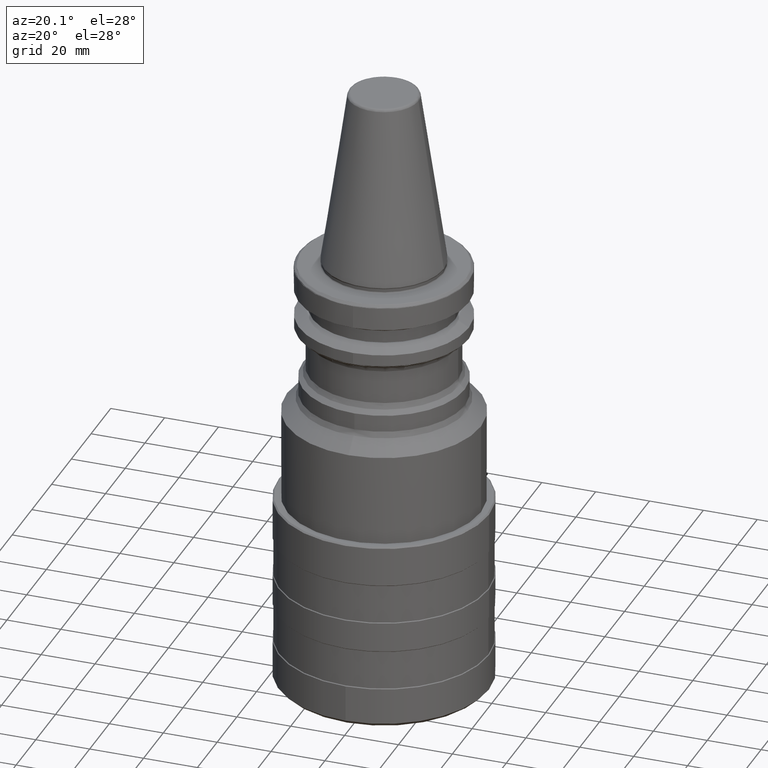
[diagram: clean part render]
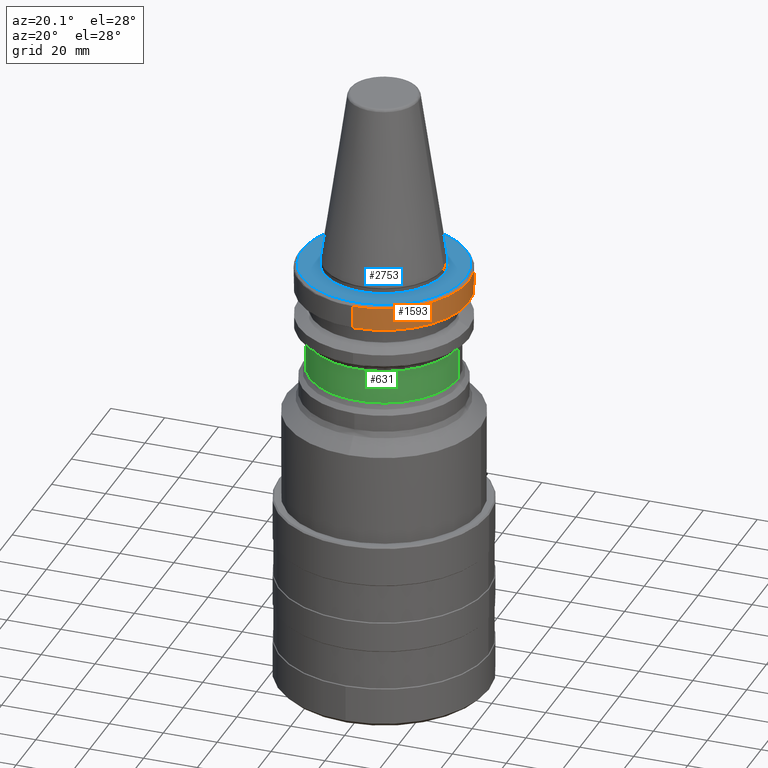
[diagram: same view with three faces highlighted in distinct colors, each labeled with its STEP entity id]
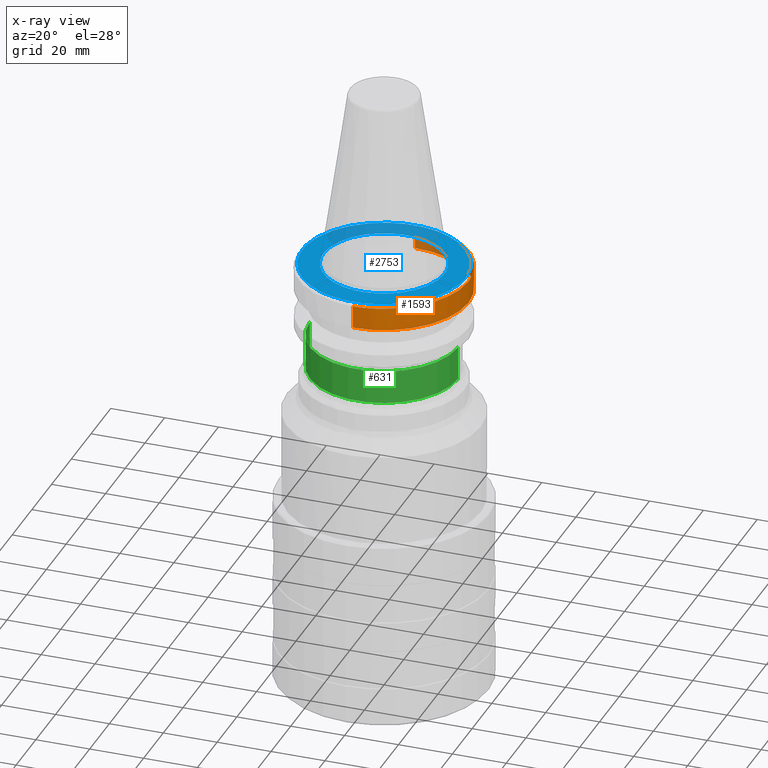
[diagram: x-ray of the same camera — body ghosted, the three highlighted faces saturated]
A machine part, auxiliary view with three faces highlighted in distinct colors.
The next image is the same camera in x-ray (body ghosted, the three faces saturated) — at least one of them is partly hidden behind the body in this view.
Their STEP definitions:

[orange] entity #1593 — the highlighted cylindrical surface (partial cylindrical patch) has radius 31.5 mm, axis along (0, -0, 1).
#61 = CYLINDRICAL_SURFACE ( 'NONE', #2381, 31.50000000000000000 ) ;
#66 = DIRECTION ( 'NONE',  ( 0.0000000000000000000, -2.753529326947312600E-017, 1.000000000000000000 ) ) ;
#88 = AXIS2_PLACEMENT_3D ( 'NONE', #1820, #1815, #1398 ) ;
#152 = ORIENTED_EDGE ( 'NONE', *, *, #2084, .F. ) ;
#209 = CIRCLE ( 'NONE', #1613, 31.50000000000000000 ) ;
#222 = CIRCLE ( 'NONE', #2523, 31.50000000000000000 ) ;
#328 = DIRECTION ( 'NONE',  ( 0.0000000000000000000, -2.753529326947312600E-017, 1.000000000000000000 ) ) ;
#340 = AXIS2_PLACEMENT_3D ( 'NONE', #2038, #2036, #2034 ) ;
#352 = CARTESIAN_POINT ( 'NONE',  ( 0.0000000000000000000, -31.50000000000000000, -11.59985799400000100 ) ) ;
#377 = AXIS2_PLACEMENT_3D ( 'NONE', #2817, #2646, #2645 ) ;
#386 = CIRCLE ( 'NONE', #377, 31.50000000000000000 ) ;
#596 = DIRECTION ( 'NONE',  ( -1.000000000000000000, 0.0000000000000000000, 0.0000000000000000000 ) ) ;
#599 = DIRECTION ( 'NONE',  ( -0.0000000000000000000, -0.0000000000000000000, -1.000000000000000000 ) ) ;
#601 = CARTESIAN_POINT ( 'NONE',  ( 0.0000000000000000000, 0.0000000000000000000, -11.61611292180778100 ) ) ;
#617 = CARTESIAN_POINT ( 'NONE',  ( 0.0000000000000000000, -31.50000000000000000, -3.165685425344566500 ) ) ;
#623 = VERTEX_POINT ( 'NONE', #1273 ) ;
#760 = FACE_OUTER_BOUND ( 'NONE', #2662, .T. ) ;
#911 = ORIENTED_EDGE ( 'NONE', *, *, #1867, .T. ) ;
#1026 = EDGE_CURVE ( 'NONE', #1959, #2538, #3109, .T. ) ;
#1262 = VERTEX_POINT ( 'NONE', #2840 ) ;
#1273 = CARTESIAN_POINT ( 'NONE',  ( 8.599437156419126500, -30.30345987841912600, -3.165685425133260500 ) ) ;
#1290 = ORIENTED_EDGE ( 'NONE', *, *, #2540, .F. ) ;
#1297 = VERTEX_POINT ( 'NONE', #2823 ) ;
#1299 = VECTOR ( 'NONE', #328, 1000.000000000000000 ) ;
#1305 = VERTEX_POINT ( 'NONE', #1972 ) ;
#1373 = ORIENTED_EDGE ( 'NONE', *, *, #2164, .T. ) ;
#1398 = DIRECTION ( 'NONE',  ( -1.000000000000000000, 0.0000000000000000000, 0.0000000000000000000 ) ) ;
#1428 = ORIENTED_EDGE ( 'NONE', *, *, #1652, .T. ) ;
#1477 = EDGE_CURVE ( 'NONE', #1305, #1669, #222, .T. ) ;
#1593 = ADVANCED_FACE ( 'NONE', ( #760 ), #61, .T. ) ;
#1613 = AXIS2_PLACEMENT_3D ( 'NONE', #601, #599, #596 ) ;
#1630 = ORIENTED_EDGE ( 'NONE', *, *, #1477, .T. ) ;
#1652 = EDGE_CURVE ( 'NONE', #1669, #623, #1989, .T. ) ;
#1664 = ORIENTED_EDGE ( 'NONE', *, *, #1026, .F. ) ;
#1669 = VERTEX_POINT ( 'NONE', #3093 ) ;
#1719 = VERTEX_POINT ( 'NONE', #3074 ) ;
#1738 = VECTOR ( 'NONE', #2023, 1000.000000000000000 ) ;
#1815 = DIRECTION ( 'NONE',  ( -0.0000000000000000000, -0.0000000000000000000, -1.000000000000000000 ) ) ;
#1820 = CARTESIAN_POINT ( 'NONE',  ( 0.0000000000000000000, 0.0000000000000000000, -3.165685425344566500 ) ) ;
#1867 = EDGE_CURVE ( 'NONE', #1297, #1305, #386, .T. ) ;
#1959 = VERTEX_POINT ( 'NONE', #2231 ) ;
#1972 = CARTESIAN_POINT ( 'NONE',  ( 8.599437156351552100, 30.30345987835155700, -3.165685425344569200 ) ) ;
#1989 = CIRCLE ( 'NONE', #2480, 31.50000000000000000 ) ;
#2019 = CARTESIAN_POINT ( 'NONE',  ( 3.857637417314162700E-015, 31.50000000000000000, -11.59985799400000100 ) ) ;
#2023 = DIRECTION ( 'NONE',  ( 0.0000000000000000000, -2.753529326947312600E-017, 1.000000000000000000 ) ) ;
#2034 = DIRECTION ( 'NONE',  ( -1.000000000000000000, 0.0000000000000000000, 0.0000000000000000000 ) ) ;
#2036 = DIRECTION ( 'NONE',  ( -0.0000000000000000000, -0.0000000000000000000, -1.000000000000000000 ) ) ;
#2038 = CARTESIAN_POINT ( 'NONE',  ( 0.0000000000000000000, 0.0000000000000000000, -11.61611292180778100 ) ) ;
#2068 = ORIENTED_EDGE ( 'NONE', *, *, #2117, .T. ) ;
#2084 = EDGE_CURVE ( 'NONE', #1262, #1719, #2795, .T. ) ;
#2117 = EDGE_CURVE ( 'NONE', #1262, #1297, #3106, .T. ) ;
#2164 = EDGE_CURVE ( 'NONE', #623, #2538, #2454, .T. ) ;
#2231 = CARTESIAN_POINT ( 'NONE',  ( 0.0000000000000000000, -31.50000000000000000, -11.61611292180778100 ) ) ;
#2381 = AXIS2_PLACEMENT_3D ( 'NONE', #2986, #66, #3100 ) ;
#2454 = CIRCLE ( 'NONE', #88, 31.50000000000000000 ) ;
#2480 = AXIS2_PLACEMENT_3D ( 'NONE', #2939, #2930, #2929 ) ;
#2523 = AXIS2_PLACEMENT_3D ( 'NONE', #2819, #2803, #2799 ) ;
#2538 = VERTEX_POINT ( 'NONE', #617 ) ;
#2540 = EDGE_CURVE ( 'NONE', #1719, #1959, #209, .T. ) ;
#2645 = DIRECTION ( 'NONE',  ( -1.000000000000000000, 0.0000000000000000000, 0.0000000000000000000 ) ) ;
#2646 = DIRECTION ( 'NONE',  ( -0.0000000000000000000, -0.0000000000000000000, -1.000000000000000000 ) ) ;
#2662 = EDGE_LOOP ( 'NONE', ( #152, #2068, #911, #1630, #1428, #1373, #1664, #1290 ) ) ;
#2795 = CIRCLE ( 'NONE', #340, 31.50000000000000000 ) ;
#2799 = DIRECTION ( 'NONE',  ( 8.881784197001252300E-016, -1.000000000000000000, -2.753529326947312900E-017 ) ) ;
#2803 = DIRECTION ( 'NONE',  ( -0.0000000000000000000, 2.753529326947312600E-017, -1.000000000000000000 ) ) ;
#2817 = CARTESIAN_POINT ( 'NONE',  ( 0.0000000000000000000, 0.0000000000000000000, -3.165685425344566500 ) ) ;
#2819 = CARTESIAN_POINT ( 'NONE',  ( 0.0000000000000000000, -2.322374151632727400E-016, -3.165685425344570100 ) ) ;
#2823 = CARTESIAN_POINT ( 'NONE',  ( 3.857637417314162700E-015, 31.50000000000000000, -3.165685425344566500 ) ) ;
#2840 = CARTESIAN_POINT ( 'NONE',  ( 3.857637417314162700E-015, 31.50000000000000000, -11.61611292180778100 ) ) ;
#2929 = DIRECTION ( 'NONE',  ( 0.0000000000000000000, -1.000000000000000000, -2.753529326947312900E-017 ) ) ;
#2930 = DIRECTION ( 'NONE',  ( -0.0000000000000000000, 2.753529326947312600E-017, -1.000000000000000000 ) ) ;
#2939 = CARTESIAN_POINT ( 'NONE',  ( 0.0000000000000000000, -2.322374151725822300E-016, -3.165685425006476100 ) ) ;
#2986 = CARTESIAN_POINT ( 'NONE',  ( 0.0000000000000000000, 0.0000000000000000000, -11.59985799400000100 ) ) ;
#3074 = CARTESIAN_POINT ( 'NONE',  ( 31.50000000000000000, 0.0000000000000000000, -11.61611292180778100 ) ) ;
#3093 = CARTESIAN_POINT ( 'NONE',  ( 31.50000000000604300, -1.414250409370629400E-009, -3.165685425174468400 ) ) ;
#3100 = DIRECTION ( 'NONE',  ( 0.0000000000000000000, -1.000000000000000000, 0.0000000000000000000 ) ) ;
#3106 = LINE ( 'NONE', #2019, #1738 ) ;
#3109 = LINE ( 'NONE', #352, #1299 ) ;

[blue] entity #2753 — the highlighted planar face has unit normal (0, 0, 1).
#1 = CARTESIAN_POINT ( 'NONE',  ( -25.93475691301419800, 15.73402824331392600, -1.999999999999999600 ) ) ;
#4 = CARTESIAN_POINT ( 'NONE',  ( -25.90711989048085000, 15.77949180602631100, -2.000000000000000000 ) ) ;
#8 = CARTESIAN_POINT ( 'NONE',  ( -25.86557998838644000, 15.84762535113979900, -1.999999999999999600 ) ) ;
#9 = CARTESIAN_POINT ( 'NONE',  ( -25.76806297210546500, 16.00617103038574000, -2.000000000000000000 ) ) ;
#11 = CARTESIAN_POINT ( 'NONE',  ( -25.57066662730077400, 16.32153201813539000, -2.000000000000000400 ) ) ;
#14 = CARTESIAN_POINT ( 'NONE',  ( -25.16642468872041900, 16.94533251066580700, -2.000000000000000000 ) ) ;
#19 = CARTESIAN_POINT ( 'NONE',  ( -24.32014381567590200, 18.16524756385124600, -2.000000000000000400 ) ) ;
#21 = CARTESIAN_POINT ( 'NONE',  ( -23.52996536012262400, 19.16342744050943700, -2.000000000000000000 ) ) ;
#26 = CARTESIAN_POINT ( 'NONE',  ( -22.95702003230674000, 19.82792287352408400, -1.999999999999999600 ) ) ;
#31 = CARTESIAN_POINT ( 'NONE',  ( -22.94165448671454400, 19.84569652300007200, -1.999999999999999600 ) ) ;
#35 = CARTESIAN_POINT ( 'NONE',  ( -22.90886212185520800, 19.88354019472395600, -2.000000000000000400 ) ) ;
#37 = CARTESIAN_POINT ( 'NONE',  ( -22.85960873492984300, 19.94023949931481400, -2.000000000000000400 ) ) ;
#38 = CARTESIAN_POINT ( 'NONE',  ( -22.74423028798287700, 20.07207445572866800, -2.000000000000000000 ) ) ;
#41 = CARTESIAN_POINT ( 'NONE',  ( 8.750000001183883200, 29.04493313135160200, -1.999999999695544000 ) ) ;
#44 = CARTESIAN_POINT ( 'NONE',  ( -22.51165788427111300, 20.33389068469722400, -2.000000000000000000 ) ) ;
#45 = CARTESIAN_POINT ( 'NONE',  ( -22.03925103757623600, 20.85010840719764100, -2.000000000000000000 ) ) ;
#48 = CARTESIAN_POINT ( 'NONE',  ( -21.06538918710113600, 21.85288491045178500, -2.000000000000000000 ) ) ;
#49 = CARTESIAN_POINT ( 'NONE',  ( -20.18085361740470400, 22.66156372738956300, -1.999999999999999600 ) ) ;
#52 = CARTESIAN_POINT ( 'NONE',  ( -19.54991186124277600, 23.19422695980474100, -2.000000000000000400 ) ) ;
#55 = CARTESIAN_POINT ( 'NONE',  ( -19.53336771987300200, 23.20815912961805300, -2.000000000000000400 ) ) ;
#57 = CARTESIAN_POINT ( 'NONE',  ( -19.49765729365184800, 23.23816722205350500, -2.000000000000000000 ) ) ;
#62 = CARTESIAN_POINT ( 'NONE',  ( -19.44404481662516200, 23.28311397325564200, -2.000000000000000000 ) ) ;
#64 = CARTESIAN_POINT ( 'NONE',  ( -19.31862117303158000, 23.38753201390327500, -2.000000000000000400 ) ) ;
#69 = CARTESIAN_POINT ( 'NONE',  ( -19.06646243038570200, 23.59453724656913200, -2.000000000000000400 ) ) ;
#72 = CARTESIAN_POINT ( 'NONE',  ( -18.55689912325920000, 24.00122431738322200, -1.999999999999999600 ) ) ;
#75 = CARTESIAN_POINT ( 'NONE',  ( -17.51678922166725300, 24.78530488094098100, -2.000000000000000400 ) ) ;
#77 = CARTESIAN_POINT ( 'NONE',  ( -16.58929509915018500, 25.40715637301256500, -2.000000000000000000 ) ) ;
#81 = CARTESIAN_POINT ( 'NONE',  ( -15.93515602129622100, 25.81166289104214300, -2.000000000000000400 ) ) ;
#84 = CARTESIAN_POINT ( 'NONE',  ( -15.91830314625505400, 25.82205752340448200, -2.000000000000000900 ) ) ;
#85 = CARTESIAN_POINT ( 'NONE',  ( -15.88159621830147800, 25.84464895972149600, -2.000000000000000400 ) ) ;
#87 = CARTESIAN_POINT ( 'NONE',  ( -15.82650416975734600, 25.87847514487810600, -2.000000000000000000 ) ) ;
#90 = CARTESIAN_POINT ( 'NONE',  ( -19.70267057813701700, -23.06468291249015900, -2.000000000000000900 ) ) ;
#96 = CARTESIAN_POINT ( 'NONE',  ( -15.69773446019117500, 25.95697612501093600, -2.000000000000000000 ) ) ;
#97 = CARTESIAN_POINT ( 'NONE',  ( -15.43930865587281800, 26.11227094434641300, -2.000000000000000400 ) ) ;
#100 = CARTESIAN_POINT ( 'NONE',  ( -14.91891150649187600, 26.41603201929641600, -2.000000000000000400 ) ) ;
#104 = CARTESIAN_POINT ( 'NONE',  ( -13.86393504475318400, 26.99623991431275300, -2.000000000000000000 ) ) ;
#106 = CARTESIAN_POINT ( 'NONE',  ( -12.93535722673121300, 27.44673653024046800, -2.000000000000000400 ) ) ;
#108 = CARTESIAN_POINT ( 'NONE',  ( -12.28581684878789600, 27.73499175342502100, -2.000000000000000000 ) ) ;
#114 = CARTESIAN_POINT ( 'NONE',  ( -12.26930747251493700, 27.74229724682599500, -2.000000000000000000 ) ) ;
#117 = ORIENTED_EDGE ( 'NONE', *, *, #1923, .T. ) ;
#118 = CARTESIAN_POINT ( 'NONE',  ( -12.23309511655208900, 27.75828331499492700, -2.000000000000000000 ) ) ;
#122 = CARTESIAN_POINT ( 'NONE',  ( -12.17875664467379000, 27.78220798525308100, -2.000000000000000000 ) ) ;
#123 = CARTESIAN_POINT ( 'NONE',  ( -29.07849509528677600, 8.724304934976773400, -1.999999999999999600 ) ) ;
#126 = CARTESIAN_POINT ( 'NONE',  ( -12.05182731141951000, 27.83765119188882800, -2.000000000000000000 ) ) ;
#127 = CARTESIAN_POINT ( 'NONE',  ( -11.79741038275805600, 27.94701350929380000, -2.000000000000000000 ) ) ;
#132 = CARTESIAN_POINT ( 'NONE',  ( -11.28634347682352000, 28.15964176063782500, -2.000000000000000000 ) ) ;
#134 = CARTESIAN_POINT ( 'NONE',  ( -10.25527747050794700, 28.56051272946200100, -2.000000000000000000 ) ) ;
#140 = CARTESIAN_POINT ( 'NONE',  ( -25.97605902264205800, -15.66574758102111400, -2.000000000000000400 ) ) ;
#153 = CARTESIAN_POINT ( 'NONE',  ( -9.356194274614868100, 28.86231264468759900, -1.999999999999999600 ) ) ;
#251 = CARTESIAN_POINT ( 'NONE',  ( -8.749999996696743700, 29.04493313379717300, -2.000000000817349700 ) ) ;
#254 = CARTESIAN_POINT ( 'NONE',  ( 21.58098036726062600, 21.31923488246043200, -2.000000000000000000 ) ) ;
#273 = CARTESIAN_POINT ( 'NONE',  ( -23.45453179582988700, -19.23892485864162800, -2.000000000000000000 ) ) ;
#282 = CARTESIAN_POINT ( 'NONE',  ( 10.64749210856316700, -19.73326019756718400, -2.000000000000000400 ) ) ;
#289 = DIRECTION ( 'NONE',  ( 1.000000000000000000, 0.0000000000000000000, -0.0000000000000000000 ) ) ;
#291 = DIRECTION ( 'NONE',  ( 0.0000000000000000000, 0.0000000000000000000, 1.000000000000000000 ) ) ;
#316 = DIRECTION ( 'NONE',  ( -1.000000000000000000, 0.0000000000000000000, 0.0000000000000000000 ) ) ;
#319 = DIRECTION ( 'NONE',  ( -0.0000000000000000000, -0.0000000000000000000, -1.000000000000000000 ) ) ;
#324 = CARTESIAN_POINT ( 'NONE',  ( 0.0000000000000000000, 0.0000000000000000000, -1.999999999989121600 ) ) ;
#331 = CARTESIAN_POINT ( 'NONE',  ( -30.69832634999999900, -29.39347233099999800, -2.000000000000000000 ) ) ;
#351 = AXIS2_PLACEMENT_3D ( 'NONE', #1711, #1710, #1705 ) ;
#354 = PLANE ( 'NONE',  #2631 ) ;
#395 = CARTESIAN_POINT ( 'NONE',  ( -22.99071937721715700, -19.78883610483726900, -2.000000000000000400 ) ) ;
#421 = CARTESIAN_POINT ( 'NONE',  ( 22.40000000735244300, 0.0000000000000000000, -1.999999999933527200 ) ) ;
#424 = CARTESIAN_POINT ( 'NONE',  ( 22.40000001097767100, 1.370271815916555700, -1.999999999999999100 ) ) ;
#426 = CARTESIAN_POINT ( 'NONE',  ( 22.27534676231670800, 2.728929275164632400, -1.999999999999999600 ) ) ;
#429 = CARTESIAN_POINT ( 'NONE',  ( 22.02214485035050700, 4.097019926222087000, -2.000000000000000000 ) ) ;
#431 = CARTESIAN_POINT ( 'NONE',  ( 22.01774245375534600, 4.120618968540661300, -2.000000000000000400 ) ) ;
#435 = CARTESIAN_POINT ( 'NONE',  ( 22.00934567844292600, 4.165236837980620200, -2.000000000000000000 ) ) ;
#440 = CARTESIAN_POINT ( 'NONE',  ( 21.99665155078732300, 4.232134920784139000, -2.000000000000000400 ) ) ;
#442 = CARTESIAN_POINT ( 'NONE',  ( 21.96633916678201400, 4.388029397830709200, -2.000000000000000400 ) ) ;
#446 = CARTESIAN_POINT ( 'NONE',  ( 21.90294338753573900, 4.699014153944027300, -2.000000000000000000 ) ) ;
#449 = CARTESIAN_POINT ( 'NONE',  ( 21.76506778410063700, 5.317766874251321800, -2.000000000000000000 ) ) ;
#452 = CARTESIAN_POINT ( 'NONE',  ( 21.44498039746019200, 6.542405147188623500, -2.000000000000000000 ) ) ;
#453 = CARTESIAN_POINT ( 'NONE',  ( 21.09461490073368500, 7.570037093688072500, -2.000000000000000000 ) ) ;
#454 = CARTESIAN_POINT ( 'NONE',  ( 20.81054814740506500, 8.287526777195934000, -2.000000000000000000 ) ) ;
#456 = CARTESIAN_POINT ( 'NONE',  ( 20.79228631238094500, 8.333249196433461800, -2.000000000000000000 ) ) ;
#459 = CARTESIAN_POINT ( 'NONE',  ( -30.08025295029874600, -3.967817496772448200, -2.000000000000000000 ) ) ;
#463 = CARTESIAN_POINT ( 'NONE',  ( 20.75691792272389000, 8.420970192399499500, -2.000000000000000000 ) ) ;
#464 = CARTESIAN_POINT ( 'NONE',  ( 20.70346859262468800, 8.552344987576608700, -2.000000000000000000 ) ) ;
#466 = CARTESIAN_POINT ( 'NONE',  ( -29.64531510731685400, -6.494600427637411900, -2.000000000000000400 ) ) ;
#468 = CARTESIAN_POINT ( 'NONE',  ( 20.57597626976470900, 8.857439284919520300, -2.000000000000000000 ) ) ;
#472 = CARTESIAN_POINT ( 'NONE',  ( 20.30988274686389900, 9.461840313990665100, -2.000000000000000000 ) ) ;
#475 = CARTESIAN_POINT ( 'NONE',  ( 19.73326019233899600, 10.64749210967427100, -2.000000000000000400 ) ) ;
#479 = CARTESIAN_POINT ( 'NONE',  ( 19.16283713064908800, 11.62407891318817800, -2.000000000000000000 ) ) ;
#482 = CARTESIAN_POINT ( 'NONE',  ( 18.69693225547596800, 12.33667593371616400, -2.000000000000000000 ) ) ;
#487 = CARTESIAN_POINT ( 'NONE',  ( 18.64241367359246500, 12.41893088918845000, -2.000000000000000000 ) ) ;
#489 = CARTESIAN_POINT ( 'NONE',  ( 18.53468171969471400, 12.57918311305249000, -1.999999999999999600 ) ) ;
#492 = CARTESIAN_POINT ( 'NONE',  ( 18.37163762518639800, 12.81838127051495800, -2.000000000000000900 ) ) ;
#495 = CARTESIAN_POINT ( 'NONE',  ( -29.48219112221249500, 7.166029825722730200, -2.000000000000000000 ) ) ;
#498 = CARTESIAN_POINT ( 'NONE',  ( 17.98107825903518300, 13.36824905625894800, -2.000000000000000000 ) ) ;
#499 = CARTESIAN_POINT ( 'NONE',  ( -8.749999996696745400, -29.04493313379716900, -2.000000000817349300 ) ) ;
#501 = CARTESIAN_POINT ( 'NONE',  ( -28.59158493529165000, -10.13841457427685500, -2.000000000000000400 ) ) ;
#502 = CARTESIAN_POINT ( 'NONE',  ( 17.15946694420549400, 14.43493963440650600, -2.000000000000000000 ) ) ;
#503 = CARTESIAN_POINT ( 'NONE',  ( 16.38581281859049100, 15.29259728423513700, -2.000000000000000000 ) ) ;
#507 = CARTESIAN_POINT ( 'NONE',  ( 14.74595009301250800, 16.93238117054285400, -2.000000000000000400 ) ) ;
#510 = CARTESIAN_POINT ( 'NONE',  ( -29.85787375159256000, -5.356460499787265100, -2.000000000000000400 ) ) ;
#512 = CARTESIAN_POINT ( 'NONE',  ( 13.55154731316298600, 17.90272196966803600, -1.999999999999999600 ) ) ;
#520 = CARTESIAN_POINT ( 'NONE',  ( 12.17662043361667700, 18.80157306204245100, -2.000000000000000000 ) ) ;
#525 = CARTESIAN_POINT ( 'NONE',  ( 12.09879234572143300, 18.85174392906850500, -2.000000000000000900 ) ) ;
#527 = CARTESIAN_POINT ( 'NONE',  ( 11.93926673176089200, 18.95319762943182000, -2.000000000000000000 ) ) ;
#535 = CARTESIAN_POINT ( 'NONE',  ( 11.69915883649278900, 19.10378741964498400, -2.000000000000000400 ) ) ;
#539 = CARTESIAN_POINT ( 'NONE',  ( 11.13317076057627600, 19.44402827448635000, -2.000000000000000000 ) ) ;
#540 = CARTESIAN_POINT ( 'NONE',  ( 9.978249327579375100, 20.07996869487834600, -2.000000000000000000 ) ) ;
#542 = B_SPLINE_CURVE_WITH_KNOTS ( 'NONE', 3,
 ( #1002, #986, #977, #974, #964, #962, #958, #1433, #3022, #1697, #956, #950, #949, #944, #942, #939, #938, #933, #1127, #2781, #1381, #928, #925, #924, #922, #921, #918, #916, #914, #910, #906, #905, #900, #895, #891, #282, #2131, #555, #889, #884, #882, #878, #877, #872, #869, #865, #864, #2183, #627, #2408, #857, #853, #846, #845, #840, #835, #833, #830, #828, #826, #825, #823, #822, #818, #813, #811, #808, #807, #802, #796, #792, #791, #787, #783, #782, #779, #775, #774, #771, #762, #761, #756, #748, #747, #745, #742, #740, #739, #736, #731, #727, #726, #721, #715, #710, #709, #704, #696, #693, #689, #685, #679, #1350, #2968, #1617, #675 ),
 .UNSPECIFIED., .F., .F.,
 ( 4, 1, 1, 1, 1, 1, 2, 2, 1, 1, 1, 1, 2, 2, 1, 1, 1, 2, 2, 2, 1, 1, 1, 2, 2, 1, 1, 1, 1, 2, 2, 1, 1, 1, 1, 1, 2, 2, 2, 1, 1, 1, 1, 1, 2, 2, 1, 1, 1, 1, 2, 2, 1, 1, 1, 2, 2, 2, 1, 1, 1, 2, 2, 1, 1, 1, 1, 2, 2, 1, 1, 1, 1, 1, 2, 2, 4 ),
 ( 0.0000000000000000000, 0.03124999999999793900, 0.04687499999999689800, 0.05468749999999636400, 0.05859374999999610000, 0.06054687499999596200, 0.06152343749999590600, 0.06249999999999585700, 0.09374999999999532300, 0.1093749999999950200, 0.1171874999999948700, 0.1210937499999947800, 0.1230468749999947800, 0.1249999999999948100, 0.1562499999999946700, 0.1718749999999945300, 0.1796874999999944200, 0.1835937499999943400, 0.1874999999999942300, 0.2499999999999930100, 0.2812499999999923900, 0.2968749999999921200, 0.3046874999999919500, 0.3085937499999919000, 0.3124999999999919000, 0.3437499999999910100, 0.3593749999999905600, 0.3671874999999903400, 0.3710937499999901700, 0.3730468749999901200, 0.3749999999999900100, 0.4062499999999890600, 0.4218749999999886200, 0.4296874999999884000, 0.4335937499999882300, 0.4355468749999881800, 0.4365234374999881200, 0.4374999999999881200, 0.4999999999999879000, 0.5312499999999877900, 0.5468749999999877900, 0.5546874999999877900, 0.5585937499999876800, 0.5605468749999876800, 0.5615234374999876800, 0.5624999999999877900, 0.5937499999999877900, 0.6093749999999879000, 0.6171874999999879000, 0.6210937499999879000, 0.6230468749999879000, 0.6249999999999879000, 0.6562499999999892300, 0.6718749999999900100, 0.6796874999999903400, 0.6835937499999904500, 0.6874999999999905600, 0.7499999999999925600, 0.7812499999999937800, 0.7968749999999943400, 0.8046874999999945600, 0.8085937499999946700, 0.8124999999999946700, 0.8437499999999951200, 0.8593749999999953400, 0.8671874999999953400, 0.8710937499999954500, 0.8730468749999954500, 0.8749999999999955600, 0.9062499999999964500, 0.9218749999999967800, 0.9296874999999970000, 0.9335937499999970000, 0.9355468749999970000, 0.9365234374999971100, 0.9374999999999971100, 1.000000000000000000 ),
 .UNSPECIFIED. ) ;
#543 = CARTESIAN_POINT ( 'NONE',  ( 8.948981903015386800, 20.54870398785878300, -2.000000000000000000 ) ) ;
#545 = CARTESIAN_POINT ( 'NONE',  ( 8.201342725864188700, 20.84466758619885200, -2.000000000000000000 ) ) ;
#549 = CARTESIAN_POINT ( 'NONE',  ( 8.160831274269966700, 20.86055757805182500, -2.000000000000000000 ) ) ;
#550 = CARTESIAN_POINT ( 'NONE',  ( 8.076228132627759800, 20.89346076553513900, -1.999999999999999600 ) ) ;
#552 = CARTESIAN_POINT ( 'NONE',  ( 7.949210505243002000, 20.94241911895868200, -2.000000000000000400 ) ) ;
#555 = CARTESIAN_POINT ( 'NONE',  ( 8.857439284138854100, -20.57597627581643700, -2.000000000000000000 ) ) ;
#557 = CARTESIAN_POINT ( 'NONE',  ( 7.652045636895108400, 21.05388028233691200, -2.000000000000000000 ) ) ;
#562 = CARTESIAN_POINT ( 'NONE',  ( 7.054554282398831900, 21.26570263065329400, -2.000000000000000000 ) ) ;
#565 = CARTESIAN_POINT ( 'NONE',  ( 5.846925102204362000, 21.64494741352570600, -1.999999999999999600 ) ) ;
#569 = CARTESIAN_POINT ( 'NONE',  ( 4.790134711405798400, 21.89390023239861800, -2.000000000000000400 ) ) ;
#576 = CARTESIAN_POINT ( 'NONE',  ( 4.053654804644544600, 22.03016964884775700, -1.999999999999999600 ) ) ;
#580 = CARTESIAN_POINT ( 'NONE',  ( 4.033857986904513900, 22.03380167325506600, -1.999999999999999600 ) ) ;
#582 = ORIENTED_EDGE ( 'NONE', *, *, #2136, .T. ) ;
#583 = CARTESIAN_POINT ( 'NONE',  ( 3.991735478399390100, 22.04147175139975100, -1.999999999999999600 ) ) ;
#589 = CARTESIAN_POINT ( 'NONE',  ( -19.60727952734758300, -23.14575034748164800, -2.000000000000000400 ) ) ;
#592 = CARTESIAN_POINT ( 'NONE',  ( -18.12012486180920900, -24.34769762068792800, -2.000000000000000000 ) ) ;
#594 = CARTESIAN_POINT ( 'NONE',  ( 3.928543597808767300, 22.05288554609809300, -2.000000000000000000 ) ) ;
#595 = CARTESIAN_POINT ( 'NONE',  ( 3.781039051600090200, 22.07887847609690700, -2.000000000000000400 ) ) ;
#597 = CARTESIAN_POINT ( 'NONE',  ( 3.485802659860605300, 22.12830730557174200, -1.999999999999999600 ) ) ;
#598 = CARTESIAN_POINT ( 'NONE',  ( 2.894420679092931000, 22.21693684243049600, -2.000000000000000400 ) ) ;
#600 = CARTESIAN_POINT ( 'NONE',  ( 1.708019928402878300, 22.35328342778412400, -2.000000000000000000 ) ) ;
#603 = CARTESIAN_POINT ( 'NONE',  ( 0.6848705035461627500, 22.40001623517774500, -2.000000000000000000 ) ) ;
#607 = CARTESIAN_POINT ( 'NONE',  ( -1.369741007092340100, 22.39996759084760600, -2.000000000000000400 ) ) ;
#608 = CARTESIAN_POINT ( 'NONE',  ( -2.729104587523075500, 22.27531432485993800, -2.000000000000000000 ) ) ;
#614 = CARTESIAN_POINT ( 'NONE',  ( -4.097017186796303000, 22.02214536552502000, -2.000000000000000000 ) ) ;
#618 = CARTESIAN_POINT ( 'NONE',  ( -4.120618968367689500, 22.01774246194663600, -2.000000000000000000 ) ) ;
#620 = CARTESIAN_POINT ( 'NONE',  ( -4.165236837802242900, 22.00934568661458400, -2.000000000000000400 ) ) ;
#626 = CARTESIAN_POINT ( 'NONE',  ( -4.232134920597647300, 21.99665155892951400, -1.999999999999999600 ) ) ;
#627 = CARTESIAN_POINT ( 'NONE',  ( 4.165236837808812700, -22.00934568661292400, -2.000000000000000000 ) ) ;
#630 = CARTESIAN_POINT ( 'NONE',  ( -4.388029397625258500, 21.96633917485548400, -2.000000000000000000 ) ) ;
#633 = CARTESIAN_POINT ( 'NONE',  ( -4.699014153700527000, 21.90294339547190500, -2.000000000000000400 ) ) ;
#634 = CARTESIAN_POINT ( 'NONE',  ( -5.317766873931202700, 21.76506779176268900, -2.000000000000000000 ) ) ;
#637 = CARTESIAN_POINT ( 'NONE',  ( -6.542405146713205600, 21.44498040457598300, -2.000000000000000000 ) ) ;
#642 = CARTESIAN_POINT ( 'NONE',  ( -7.570037093076011900, 21.09461490738469500, -2.000000000000000000 ) ) ;
#647 = CARTESIAN_POINT ( 'NONE',  ( -8.287526776485403700, 20.81054815372847200, -1.999999999999999600 ) ) ;
#648 = CARTESIAN_POINT ( 'NONE',  ( -8.333249195709706600, 20.79228631868618000, -2.000000000000000000 ) ) ;
#650 = CARTESIAN_POINT ( 'NONE',  ( -8.420970191656710600, 20.75691792899169000, -1.999999999999999600 ) ) ;
#654 = CARTESIAN_POINT ( 'NONE',  ( -8.552344986805241700, 20.70346859883634500, -2.000000000000000400 ) ) ;
#658 = CARTESIAN_POINT ( 'NONE',  ( -8.857439284081348100, 20.57597627584531400, -2.000000000000000000 ) ) ;
#659 = CARTESIAN_POINT ( 'NONE',  ( -9.461840313018397500, 20.30988275268242700, -2.000000000000000400 ) ) ;
#662 = CARTESIAN_POINT ( 'NONE',  ( -28.26991326089692100, 10.99934583374214400, -2.000000000000000000 ) ) ;
#669 = CARTESIAN_POINT ( 'NONE',  ( -10.64749210843171700, 19.73326019763321400, -2.000000000000000400 ) ) ;
#672 = CARTESIAN_POINT ( 'NONE',  ( -11.62407891171042200, 19.16283713549372400, -2.000000000000000000 ) ) ;
#674 = CARTESIAN_POINT ( 'NONE',  ( -12.33667593206023700, 18.69693225998331300, -2.000000000000000000 ) ) ;
#675 = CARTESIAN_POINT ( 'NONE',  ( -22.40000000735244300, 3.033704079228229800E-015, -1.999999999933527200 ) ) ;
#677 = CARTESIAN_POINT ( 'NONE',  ( -12.41893088751262500, 18.64241367806022600, -2.000000000000000400 ) ) ;
#679 = CARTESIAN_POINT ( 'NONE',  ( -22.01774245375515100, -4.120618968541586800, -2.000000000000000400 ) ) ;
#683 = CARTESIAN_POINT ( 'NONE',  ( -12.57918311133554000, 18.53468172408639000, -2.000000000000000000 ) ) ;
#685 = CARTESIAN_POINT ( 'NONE',  ( -22.00934567844255000, -4.165236837982451600, -2.000000000000000900 ) ) ;
#687 = CARTESIAN_POINT ( 'NONE',  ( -12.81838126873491400, 18.37163762946492400, -2.000000000000000000 ) ) ;
#688 = CARTESIAN_POINT ( 'NONE',  ( -13.36824905432178500, 17.98107826305664100, -2.000000000000000400 ) ) ;
#689 = CARTESIAN_POINT ( 'NONE',  ( -21.99665155078666600, -4.232134920787297400, -2.000000000000000000 ) ) ;
#692 = CARTESIAN_POINT ( 'NONE',  ( -14.43493963211549600, 17.15946694774041600, -1.999999999999999600 ) ) ;
#693 = CARTESIAN_POINT ( 'NONE',  ( -21.96633916678071700, -4.388029397836835000, -2.000000000000000000 ) ) ;
#695 = CARTESIAN_POINT ( 'NONE',  ( -15.29259728157291300, 16.38581282175576700, -2.000000000000000400 ) ) ;
#696 = CARTESIAN_POINT ( 'NONE',  ( -21.90294338753334500, -4.699014153955477700, -2.000000000000000000 ) ) ;
#699 = CARTESIAN_POINT ( 'NONE',  ( -16.93238116704767300, 14.74595009550162000, -2.000000000000000400 ) ) ;
#700 = CARTESIAN_POINT ( 'NONE',  ( -17.90272196576564700, 13.55154731508927100, -2.000000000000000400 ) ) ;
#702 = CARTESIAN_POINT ( 'NONE',  ( -18.80157305745747100, 12.17662043523467500, -2.000000000000000000 ) ) ;
#703 = CARTESIAN_POINT ( 'NONE',  ( -18.85174392445306400, 12.09879234730981600, -2.000000000000000000 ) ) ;
#704 = CARTESIAN_POINT ( 'NONE',  ( -21.76506778409653000, -5.317766874270956700, -2.000000000000000000 ) ) ;
#707 = CARTESIAN_POINT ( 'NONE',  ( -18.95319762474537100, 11.93926673330238100, -1.999999999999999600 ) ) ;
#709 = CARTESIAN_POINT ( 'NONE',  ( -21.44498039745471400, -6.542405147214806100, -2.000000000000000000 ) ) ;
#710 = CARTESIAN_POINT ( 'NONE',  ( -21.09461490073056600, -7.570037093703028600, -2.000000000000000000 ) ) ;
#713 = CARTESIAN_POINT ( 'NONE',  ( -19.10378741485158100, 11.69915883796482000, -2.000000000000000900 ) ) ;
#715 = CARTESIAN_POINT ( 'NONE',  ( -20.81054814740527800, -8.287526777194990800, -2.000000000000000400 ) ) ;
#717 = CARTESIAN_POINT ( 'NONE',  ( -19.44402826944049400, 11.13317076189226300, -2.000000000000000400 ) ) ;
#720 = CARTESIAN_POINT ( 'NONE',  ( -20.07996868931588400, 9.978249328607537500, -2.000000000000000400 ) ) ;
#721 = CARTESIAN_POINT ( 'NONE',  ( -20.79228631237954200, -8.333249196436106800, -2.000000000000000000 ) ) ;
#724 = CARTESIAN_POINT ( 'NONE',  ( -20.54870398183353300, 8.948981903838408400, -2.000000000000000000 ) ) ;
#726 = CARTESIAN_POINT ( 'NONE',  ( -20.75691792272114700, -8.420970192404677600, -2.000000000000000400 ) ) ;
#727 = CARTESIAN_POINT ( 'NONE',  ( -20.70346859262000500, -8.552344987585444300, -2.000000000000000000 ) ) ;
#729 = CARTESIAN_POINT ( 'NONE',  ( -20.84466757983634000, 8.201342726561531300, -2.000000000000000000 ) ) ;
#730 = CARTESIAN_POINT ( 'NONE',  ( -20.86055757166954500, 8.160831274964353500, -1.999999999999999600 ) ) ;
#731 = CARTESIAN_POINT ( 'NONE',  ( -20.57597626975594800, -8.857439284936020800, -2.000000000000000000 ) ) ;
#735 = CARTESIAN_POINT ( 'NONE',  ( -20.89346075911328900, 8.076228133311749600, -2.000000000000000000 ) ) ;
#736 = CARTESIAN_POINT ( 'NONE',  ( -20.30988274684888500, -9.461840314018971300, -2.000000000000000400 ) ) ;
#738 = CARTESIAN_POINT ( 'NONE',  ( -20.94241911247749100, 7.949210505911340300, -2.000000000000000400 ) ) ;
#739 = CARTESIAN_POINT ( 'NONE',  ( -19.73326019231896200, -10.64749210971201200, -2.000000000000000400 ) ) ;
#740 = CARTESIAN_POINT ( 'NONE',  ( -19.16283713063764400, -11.62407891320974500, -2.000000000000000000 ) ) ;
#741 = CARTESIAN_POINT ( 'NONE',  ( -21.05388027571751800, 7.652045637526698300, -2.000000000000000000 ) ) ;
#742 = CARTESIAN_POINT ( 'NONE',  ( -18.69693225547739200, -12.33667593371346700, -2.000000000000000000 ) ) ;
#743 = CARTESIAN_POINT ( 'NONE',  ( -21.26570262375838600, 7.054554282955792600, -2.000000000000000000 ) ) ;
#744 = CARTESIAN_POINT ( 'NONE',  ( -21.64494740608344600, 5.846925102607626100, -2.000000000000000400 ) ) ;
#745 = CARTESIAN_POINT ( 'NONE',  ( -18.64241367358715000, -12.41893088919557900, -1.999999999999999600 ) ) ;
#746 = CARTESIAN_POINT ( 'NONE',  ( -28.64170118582841700, 10.03381388209389300, -2.000000000000000400 ) ) ;
#747 = CARTESIAN_POINT ( 'NONE',  ( -18.53468171968460600, -12.57918311306604900, -1.999999999999999600 ) ) ;
#748 = CARTESIAN_POINT ( 'NONE',  ( -18.37163762516959800, -12.81838127053747200, -2.000000000000000000 ) ) ;
#750 = CARTESIAN_POINT ( 'NONE',  ( -21.89390022449347100, 4.790134711669678000, -2.000000000000000900 ) ) ;
#752 = CARTESIAN_POINT ( 'NONE',  ( -22.03016964062724300, 4.053654804809110800, -2.000000000000000000 ) ) ;
#754 = CARTESIAN_POINT ( 'NONE',  ( -22.03380065951906600, 4.033863421416446800, -1.999999999999999600 ) ) ;
#755 = CARTESIAN_POINT ( 'NONE',  ( -22.04146975589081600, 3.991746218885305900, -1.999999999999999600 ) ) ;
#756 = CARTESIAN_POINT ( 'NONE',  ( -17.98107825900639200, -13.36824905629754300, -2.000000000000000400 ) ) ;
#758 = CARTESIAN_POINT ( 'NONE',  ( -22.05288210168188100, 3.928562168885284300, -2.000000000000000000 ) ) ;
#761 = CARTESIAN_POINT ( 'NONE',  ( -17.15946694416710000, -14.43493963445796900, -2.000000000000000000 ) ) ;
#762 = CARTESIAN_POINT ( 'NONE',  ( -16.38581281856855700, -15.29259728426454700, -2.000000000000000400 ) ) ;
#765 = CARTESIAN_POINT ( 'NONE',  ( -22.07887181716179400, 3.781074995462021500, -2.000000000000000000 ) ) ;
#768 = CARTESIAN_POINT ( 'NONE',  ( -22.12829488265795800, 3.485869754922647200, -2.000000000000000400 ) ) ;
#769 = CARTESIAN_POINT ( 'NONE',  ( -22.21691555179570400, 2.894535699072617400, -1.999999999999999600 ) ) ;
#771 = CARTESIAN_POINT ( 'NONE',  ( -14.74595009305637600, -16.93238117048405300, -2.000000000000000900 ) ) ;
#774 = CARTESIAN_POINT ( 'NONE',  ( -13.55154731310642900, -17.90272196970963800, -2.000000000000000000 ) ) ;
#775 = CARTESIAN_POINT ( 'NONE',  ( -12.17662043362020800, -18.80157306203985400, -2.000000000000000400 ) ) ;
#777 = CARTESIAN_POINT ( 'NONE',  ( -22.40000000735244300, 3.033704079228229800E-015, -1.999999999933527200 ) ) ;
#778 = CARTESIAN_POINT ( 'NONE',  ( -22.40000001067058500, 0.6849581377538874700, -2.000000000000000400 ) ) ;
#779 = CARTESIAN_POINT ( 'NONE',  ( -12.09879234572204600, -18.85174392906756300, -2.000000000000000900 ) ) ;
#781 = CARTESIAN_POINT ( 'NONE',  ( -22.35325504265290800, 1.708173288287334600, -1.999999999999999600 ) ) ;
#782 = CARTESIAN_POINT ( 'NONE',  ( -11.93926673176203900, -18.95319762943002200, -2.000000000000000000 ) ) ;
#783 = CARTESIAN_POINT ( 'NONE',  ( -11.69915883649470500, -19.10378741964200000, -2.000000000000000000 ) ) ;
#787 = CARTESIAN_POINT ( 'NONE',  ( -11.13317076057954000, -19.44402827448124100, -2.000000000000000000 ) ) ;
#791 = CARTESIAN_POINT ( 'NONE',  ( -9.978249327583729000, -20.07996869487152800, -2.000000000000000000 ) ) ;
#792 = CARTESIAN_POINT ( 'NONE',  ( -8.948981903017866600, -20.54870398785488900, -1.999999999999999600 ) ) ;
#796 = CARTESIAN_POINT ( 'NONE',  ( -8.201342725864023500, -20.84466758619909800, -2.000000000000000000 ) ) ;
#802 = CARTESIAN_POINT ( 'NONE',  ( -8.160831274275462700, -20.86055757804999900, -2.000000000000000400 ) ) ;
#807 = CARTESIAN_POINT ( 'NONE',  ( -8.076228132638496100, -20.89346076553155700, -2.000000000000000000 ) ) ;
#808 = CARTESIAN_POINT ( 'NONE',  ( -7.949210505261334900, -20.94241911895257100, -2.000000000000000000 ) ) ;
#811 = CARTESIAN_POINT ( 'NONE',  ( -7.652045636929345000, -21.05388028232549400, -2.000000000000000000 ) ) ;
#813 = CARTESIAN_POINT ( 'NONE',  ( -7.054554282457536000, -21.26570263063372600, -2.000000000000000000 ) ) ;
#815 = CARTESIAN_POINT ( 'NONE',  ( -23.09560902082364800, -19.66642478371907300, -2.000000000000000900 ) ) ;
#818 = CARTESIAN_POINT ( 'NONE',  ( -5.846925102282645200, -21.64494741349961200, -2.000000000000000000 ) ) ;
#822 = CARTESIAN_POINT ( 'NONE',  ( -4.790134711450524400, -21.89390023238371100, -2.000000000000000000 ) ) ;
#823 = CARTESIAN_POINT ( 'NONE',  ( -4.053654804643145800, -22.03016964884821500, -2.000000000000000400 ) ) ;
#825 = CARTESIAN_POINT ( 'NONE',  ( -4.033857986905861300, -22.03380167325519800, -2.000000000000000900 ) ) ;
#826 = CARTESIAN_POINT ( 'NONE',  ( -3.991735478402046700, -22.04147175140001400, -2.000000000000000000 ) ) ;
#828 = CARTESIAN_POINT ( 'NONE',  ( -3.928543597813360000, -22.05288554609855800, -2.000000000000000000 ) ) ;
#830 = CARTESIAN_POINT ( 'NONE',  ( -3.781039051609005800, -22.07887847609780600, -2.000000000000000400 ) ) ;
#833 = CARTESIAN_POINT ( 'NONE',  ( -3.485802659877216900, -22.12830730557345800, -2.000000000000000400 ) ) ;
#835 = CARTESIAN_POINT ( 'NONE',  ( -2.894420679121409100, -22.21693684243343000, -2.000000000000000400 ) ) ;
#840 = CARTESIAN_POINT ( 'NONE',  ( -1.708019928440844200, -22.35328342778804300, -2.000000000000000400 ) ) ;
#845 = CARTESIAN_POINT ( 'NONE',  ( -0.6848705035678596100, -22.40001623517999000, -2.000000000000000000 ) ) ;
#846 = CARTESIAN_POINT ( 'NONE',  ( 1.369741007135726100, -22.39996759084313600, -2.000000000000000400 ) ) ;
#850 = CARTESIAN_POINT ( 'NONE',  ( -28.22925040111518800, 11.10329216924739600, -1.999999999999999100 ) ) ;
#853 = CARTESIAN_POINT ( 'NONE',  ( 2.729104587584243000, -22.27531432485545800, -2.000000000000000400 ) ) ;
#857 = CARTESIAN_POINT ( 'NONE',  ( 4.097017186795343800, -22.02214536552509500, -2.000000000000000400 ) ) ;
#864 = CARTESIAN_POINT ( 'NONE',  ( 4.388029397647224900, -21.96633917484991700, -2.000000000000000000 ) ) ;
#865 = CARTESIAN_POINT ( 'NONE',  ( 4.699014153741561700, -21.90294339546153100, -2.000000000000000000 ) ) ;
#869 = CARTESIAN_POINT ( 'NONE',  ( 5.317766874001553600, -21.76506779174490100, -2.000000000000000000 ) ) ;
#872 = CARTESIAN_POINT ( 'NONE',  ( 6.542405146806994600, -21.44498040455227500, -1.999999999999999600 ) ) ;
#877 = CARTESIAN_POINT ( 'NONE',  ( 7.570037093129594800, -21.09461490737115600, -2.000000000000000400 ) ) ;
#878 = CARTESIAN_POINT ( 'NONE',  ( 8.287526776482042800, -20.81054815372933200, -2.000000000000000000 ) ) ;
#882 = CARTESIAN_POINT ( 'NONE',  ( 8.333249195718940100, -20.79228631868154800, -2.000000000000000000 ) ) ;
#884 = CARTESIAN_POINT ( 'NONE',  ( 8.420970191674745900, -20.75691792898262700, -2.000000000000000000 ) ) ;
#885 = CARTESIAN_POINT ( 'NONE',  ( 29.74330076373944500, -5.982681670688530000, -2.000000000000000400 ) ) ;
#886 = EDGE_CURVE ( 'NONE', #2474, #1985, #1074, .T. ) ;
#889 = CARTESIAN_POINT ( 'NONE',  ( 8.552344986836052600, -20.70346859882088000, -2.000000000000000900 ) ) ;
#891 = CARTESIAN_POINT ( 'NONE',  ( 11.62407891178553300, -19.16283713545599100, -2.000000000000000000 ) ) ;
#895 = CARTESIAN_POINT ( 'NONE',  ( 12.33667593205085400, -18.69693225998803100, -2.000000000000000400 ) ) ;
#900 = CARTESIAN_POINT ( 'NONE',  ( 12.41893088751900400, -18.64241367805323400, -2.000000000000000000 ) ) ;
#905 = CARTESIAN_POINT ( 'NONE',  ( 12.57918311134769400, -18.53468172407307800, -2.000000000000000000 ) ) ;
#906 = CARTESIAN_POINT ( 'NONE',  ( 12.81838126875511300, -18.37163762944283400, -2.000000000000000000 ) ) ;
#910 = CARTESIAN_POINT ( 'NONE',  ( 13.36824905435640600, -17.98107826301874800, -2.000000000000000000 ) ) ;
#914 = CARTESIAN_POINT ( 'NONE',  ( 14.43493963216165500, -17.15946694768991100, -2.000000000000000400 ) ) ;
#916 = CARTESIAN_POINT ( 'NONE',  ( 15.29259728159929000, -16.38581282172689800, -2.000000000000000400 ) ) ;
#918 = CARTESIAN_POINT ( 'NONE',  ( 16.93238116699492200, -14.74595009555934200, -1.999999999999999600 ) ) ;
#921 = CARTESIAN_POINT ( 'NONE',  ( 17.90272196578645800, -13.55154731507344400, -2.000000000000000000 ) ) ;
#922 = CARTESIAN_POINT ( 'NONE',  ( 18.80157305745617400, -12.17662043523567500, -2.000000000000000000 ) ) ;
#924 = CARTESIAN_POINT ( 'NONE',  ( 18.85174392445564400, -12.09879234730396800, -1.999999999999999600 ) ) ;
#925 = CARTESIAN_POINT ( 'NONE',  ( 18.95319762475028100, -11.93926673329125200, -2.000000000000000000 ) ) ;
#928 = CARTESIAN_POINT ( 'NONE',  ( 19.10378741485976300, -11.69915883794632100, -2.000000000000000900 ) ) ;
#933 = CARTESIAN_POINT ( 'NONE',  ( 20.84466757983567600, -8.201342726563039400, -2.000000000000000000 ) ) ;
#938 = CARTESIAN_POINT ( 'NONE',  ( 20.86055757166864300, -8.160831274966293200, -2.000000000000000000 ) ) ;
#939 = CARTESIAN_POINT ( 'NONE',  ( 20.89346075911152000, -8.076228133315543900, -2.000000000000000000 ) ) ;
#942 = CARTESIAN_POINT ( 'NONE',  ( 20.94241911247447900, -7.949210505917846200, -2.000000000000000400 ) ) ;
#944 = CARTESIAN_POINT ( 'NONE',  ( 21.05388027571188700, -7.652045637538825500, -2.000000000000000400 ) ) ;
#949 = CARTESIAN_POINT ( 'NONE',  ( 21.26570262374876600, -7.054554282976593700, -2.000000000000000000 ) ) ;
#950 = CARTESIAN_POINT ( 'NONE',  ( 21.64494740607059200, -5.846925102635351500, -2.000000000000000400 ) ) ;
#955 = CIRCLE ( 'NONE', #351, 30.33431457056804700 ) ;
#956 = CARTESIAN_POINT ( 'NONE',  ( 21.89390022448612100, -4.790134711685517700, -2.000000000000000000 ) ) ;
#958 = CARTESIAN_POINT ( 'NONE',  ( 22.05288210168188100, -3.928562168890041800, -2.000000000000000900 ) ) ;
#962 = CARTESIAN_POINT ( 'NONE',  ( 22.07887181716179400, -3.781074995471222600, -2.000000000000000000 ) ) ;
#964 = CARTESIAN_POINT ( 'NONE',  ( 22.12829488265795400, -3.485869754939841900, -2.000000000000000400 ) ) ;
#973 = FACE_BOUND ( 'NONE', #1337, .T. ) ;
#974 = CARTESIAN_POINT ( 'NONE',  ( 22.21691555179570400, -2.894535699102095600, -2.000000000000000000 ) ) ;
#977 = CARTESIAN_POINT ( 'NONE',  ( 22.35325504265292600, -1.708173288326649800, -1.999999999999999600 ) ) ;
#986 = CARTESIAN_POINT ( 'NONE',  ( 22.40000001067058500, -0.6849581377763511700, -1.999999999999999600 ) ) ;
#1002 = CARTESIAN_POINT ( 'NONE',  ( 22.40000000735244300, 0.0000000000000000000, -1.999999999933527200 ) ) ;
#1038 = CARTESIAN_POINT ( 'NONE',  ( -23.92199290865276900, -18.66095818528958000, -2.000000000000000400 ) ) ;
#1057 = CARTESIAN_POINT ( 'NONE',  ( -16.50694295200682000, -25.45098990461233500, -2.000000000000000000 ) ) ;
#1074 = B_SPLINE_CURVE_WITH_KNOTS ( 'NONE', 3,
 ( #777, #778, #781, #769, #768, #765, #758, #755, #754, #752, #750, #744, #743, #741, #738, #735, #730, #729, #724, #720, #717, #713, #707, #703, #702, #700, #699, #695, #692, #688, #687, #683, #677, #674, #672, #669, #659, #658, #654, #650, #648, #647, #642, #637, #634, #633, #630, #626, #620, #618, #614, #608, #607, #603, #600, #598, #597, #595, #594, #583, #580, #576, #569, #565, #562, #557, #552, #550, #549, #545, #543, #540, #539, #535, #527, #525, #520, #512, #507, #503, #502, #498, #492, #489, #487, #482, #479, #475, #472, #468, #464, #463, #456, #454, #453, #452, #449, #446, #442, #440, #435, #431, #429, #426, #424, #421 ),
 .UNSPECIFIED., .F., .F.,
 ( 4, 1, 1, 1, 1, 1, 2, 2, 1, 1, 1, 1, 2, 2, 1, 1, 1, 2, 2, 2, 1, 1, 1, 2, 2, 1, 1, 1, 1, 2, 2, 1, 1, 1, 1, 1, 2, 2, 2, 1, 1, 1, 1, 1, 2, 2, 1, 1, 1, 1, 2, 2, 1, 1, 1, 2, 2, 2, 1, 1, 1, 2, 2, 1, 1, 1, 1, 2, 2, 1, 1, 1, 1, 1, 2, 2, 4 ),
 ( 0.0000000000000000000, 0.03125000000000140200, 0.04687500000000208900, 0.05468750000000244200, 0.05859375000000261600, 0.06054687500000269200, 0.06152343750000272000, 0.06250000000000273400, 0.09375000000000334500, 0.1093750000000036200, 0.1171875000000037700, 0.1210937500000039100, 0.1230468750000040000, 0.1250000000000040500, 0.1562500000000060000, 0.1718750000000069700, 0.1796875000000074700, 0.1835937500000077400, 0.1875000000000079900, 0.2500000000000127700, 0.2812500000000151000, 0.2968750000000162600, 0.3046875000000168200, 0.3085937500000170400, 0.3125000000000173200, 0.3437500000000187600, 0.3593750000000194300, 0.3671875000000198200, 0.3710937500000199800, 0.3730468750000200400, 0.3750000000000201500, 0.4062500000000215400, 0.4218750000000222600, 0.4296875000000225900, 0.4335937500000227600, 0.4355468750000228700, 0.4365234375000229300, 0.4375000000000229800, 0.5000000000000230900, 0.5312500000000232000, 0.5468750000000232000, 0.5546875000000232000, 0.5585937500000232000, 0.5605468750000230900, 0.5615234375000230900, 0.5625000000000229800, 0.5937500000000222000, 0.6093750000000217600, 0.6171875000000215400, 0.6210937500000215400, 0.6230468750000215400, 0.6250000000000214300, 0.6562500000000203200, 0.6718750000000197600, 0.6796875000000195400, 0.6835937500000193200, 0.6875000000000192100, 0.7500000000000158800, 0.7812500000000142100, 0.7968750000000133200, 0.8046875000000128800, 0.8085937500000126600, 0.8125000000000123200, 0.8437500000000105500, 0.8593750000000095500, 0.8671875000000091000, 0.8710937500000088800, 0.8730468750000087700, 0.8750000000000085500, 0.9062500000000063300, 0.9218750000000051100, 0.9296875000000046600, 0.9335937500000043300, 0.9355468750000042200, 0.9365234375000041100, 0.9375000000000041100, 1.000000000000000000 ),
 .UNSPECIFIED. ) ;
#1080 = ORIENTED_EDGE ( 'NONE', *, *, #2748, .F. ) ;
#1099 = CARTESIAN_POINT ( 'NONE',  ( -27.45564390894220000, -12.95231799910619600, -2.000000000000000000 ) ) ;
#1100 = CARTESIAN_POINT ( 'NONE',  ( -22.40000000735244300, 3.033704079228229800E-015, -1.999999999933527200 ) ) ;
#1116 = CARTESIAN_POINT ( 'NONE',  ( -30.33424671950221800, 1.877811656709692500, -2.000000000000000000 ) ) ;
#1127 = CARTESIAN_POINT ( 'NONE',  ( 20.54870398184420900, -8.948981903814228600, -2.000000000000000000 ) ) ;
#1142 = ORIENTED_EDGE ( 'NONE', *, *, #1250, .T. ) ;
#1154 = CARTESIAN_POINT ( 'NONE',  ( 29.92839304592586600, -4.947676280223587900, -1.999999999999999600 ) ) ;
#1174 = CARTESIAN_POINT ( 'NONE',  ( -24.81884912109134000, -17.47771018744678900, -2.000000000000000000 ) ) ;
#1211 = CARTESIAN_POINT ( 'NONE',  ( -29.83653600378434200, -5.474012999358163400, -2.000000000000000000 ) ) ;
#1213 = CARTESIAN_POINT ( 'NONE',  ( -8.749999996696743700, 29.04493313379717300, -2.000000000817349700 ) ) ;
#1250 = EDGE_CURVE ( 'NONE', #2456, #2604, #1567, .T. ) ;
#1286 = CARTESIAN_POINT ( 'NONE',  ( -28.33020065102975600, -10.84312523421693100, -2.000000000000000400 ) ) ;
#1315 = CARTESIAN_POINT ( 'NONE',  ( -20.62100972160354600, -22.25375169236813700, -1.999999999999999600 ) ) ;
#1317 = CARTESIAN_POINT ( 'NONE',  ( -28.35147241605653800, -10.78739210407167800, -2.000000000000000400 ) ) ;
#1337 = EDGE_LOOP ( 'NONE', ( #2989, #3055 ) ) ;
#1350 = CARTESIAN_POINT ( 'NONE',  ( -22.02214485035051400, -4.097019926222026600, -2.000000000000000000 ) ) ;
#1359 = CARTESIAN_POINT ( 'NONE',  ( 30.33431457056804700, 0.0000000000000000000, -1.999999999989126700 ) ) ;
#1367 = VERTEX_POINT ( 'NONE', #3073 ) ;
#1381 = CARTESIAN_POINT ( 'NONE',  ( 19.44402826945450300, -11.13317076186053900, -2.000000000000000000 ) ) ;
#1410 = CARTESIAN_POINT ( 'NONE',  ( -27.98957048436432200, -11.72831482737127100, -2.000000000000000000 ) ) ;
#1414 = CIRCLE ( 'NONE', #2055, 30.33431457056804700 ) ;
#1433 = CARTESIAN_POINT ( 'NONE',  ( 22.04146975589081600, -3.991746218888060600, -2.000000000000000000 ) ) ;
#1438 = VERTEX_POINT ( 'NONE', #2709 ) ;
#1440 = CARTESIAN_POINT ( 'NONE',  ( -26.16251182605792600, -15.35303256529090300, -2.000000000000000000 ) ) ;
#1449 = CARTESIAN_POINT ( 'NONE',  ( -16.09363692140767900, -25.71320829329910800, -2.000000000000000400 ) ) ;
#1488 = CARTESIAN_POINT ( 'NONE',  ( -23.04373955722354200, -19.72706941016323200, -2.000000000000000000 ) ) ;
#1527 = CARTESIAN_POINT ( 'NONE',  ( -29.95723620412963200, -4.778453517275394800, -2.000000000000000000 ) ) ;
#1553 = CARTESIAN_POINT ( 'NONE',  ( -23.21604298776754000, -19.52449386392530800, -2.000000000000000000 ) ) ;
#1554 = CARTESIAN_POINT ( 'NONE',  ( -21.63382071835960100, -21.29030445629838700, -2.000000000000000400 ) ) ;
#1564 = CARTESIAN_POINT ( 'NONE',  ( -27.06379350553772100, 13.75230535325697400, -1.999999999999999600 ) ) ;
#1567 = B_SPLINE_CURVE_WITH_KNOTS ( 'NONE', 3,
 ( #251, #153, #134, #132, #127, #126, #122, #118, #114, #108, #106, #104, #100, #97, #96, #87, #85, #84, #81, #77, #75, #72, #69, #64, #62, #57, #55, #52, #49, #48, #45, #44, #38, #37, #35, #31, #26, #21, #19, #14, #11, #9, #8, #4, #1, #2857, #1615, #1564, #1639, #2473, #2506, #850, #662, #2851, #746, #123, #495, #1686, #2542, #2587, #2441, #2207, #1116, #1886, #2289, #459, #1527, #2713, #510, #1211, #466, #3144, #1730, #501, #2486, #3151, #1317, #1286, #1410, #1099, #2468, #2650, #1440, #1645, #2148, #1644, #140, #2431, #1174, #1038, #273, #1553, #815, #1488, #2909, #395, #2282, #1554, #1315, #2677, #2301, #90, #2224, #589, #2878, #2958, #592, #1634, #1057, #1877, #1449, #3014, #2949, #2957, #2954, #3021, #3018, #2668, #2670, #2675, #2679, #3045, #3043, #3041, #2831, #2827 ),
 .UNSPECIFIED., .F., .F.,
 ( 4, 1, 1, 1, 1, 1, 2, 2, 1, 1, 1, 1, 1, 2, 2, 1, 1, 1, 1, 1, 2, 2, 1, 1, 1, 1, 1, 2, 2, 1, 1, 1, 1, 1, 2, 2, 1, 1, 1, 1, 2, 2, 1, 1, 1, 2, 2, 2, 1, 1, 1, 2, 2, 1, 1, 1, 1, 2, 2, 1, 1, 1, 1, 1, 2, 2, 1, 1, 1, 1, 1, 2, 2, 1, 1, 1, 1, 1, 2, 2, 1, 1, 1, 1, 1, 2, 2, 1, 1, 1, 1, 1, 2, 2, 4 ),
 ( 0.0000000000000000000, 0.03125000000000041600, 0.04687500000000066600, 0.05468750000000082600, 0.05859375000000086700, 0.06054687500000091600, 0.06152343750000102000, 0.06250000000000112400, 0.09375000000000509300, 0.1093750000000070800, 0.1171875000000080800, 0.1210937500000086000, 0.1230468750000088000, 0.1240234375000088300, 0.1250000000000088500, 0.1562500000000105200, 0.1718750000000114100, 0.1796875000000117700, 0.1835937500000118500, 0.1855468750000119100, 0.1865234375000118800, 0.1875000000000118200, 0.2187500000000093500, 0.2343750000000081900, 0.2421875000000075800, 0.2460937500000073300, 0.2480468750000071100, 0.2490234375000069700, 0.2500000000000067700, 0.2812500000000044400, 0.2968750000000033300, 0.3046875000000027800, 0.3085937500000025000, 0.3105468750000023300, 0.3115234375000022200, 0.3125000000000021100, 0.3437500000000001100, 0.3593749999999990600, 0.3671874999999985600, 0.3710937499999982800, 0.3730468749999982200, 0.3749999999999981100, 0.4062499999999966700, 0.4218749999999960000, 0.4296874999999956700, 0.4335937499999955000, 0.4374999999999953400, 0.4999999999999927300, 0.5312499999999914500, 0.5468749999999907900, 0.5546874999999904500, 0.5585937499999902300, 0.5624999999999900100, 0.5937499999999887900, 0.6093749999999881200, 0.6171874999999877900, 0.6210937499999876800, 0.6230468749999875700, 0.6249999999999874500, 0.6562499999999861200, 0.6718749999999854600, 0.6796874999999851200, 0.6835937499999849000, 0.6855468749999847900, 0.6865234374999847900, 0.6874999999999847900, 0.7187499999999865700, 0.7343749999999874500, 0.7421874999999879000, 0.7460937499999882300, 0.7480468749999883400, 0.7490234374999884500, 0.7499999999999885600, 0.7812499999999916700, 0.7968749999999933400, 0.8046874999999941200, 0.8085937499999944500, 0.8105468749999945600, 0.8115234374999946700, 0.8124999999999947800, 0.8437499999999981100, 0.8593749999999997800, 0.8671875000000006700, 0.8710937500000012200, 0.8730468750000013300, 0.8740234375000013300, 0.8750000000000013300, 0.9062500000000006700, 0.9218750000000003300, 0.9296875000000002200, 0.9335937500000000000, 0.9355468749999998900, 0.9365234374999997800, 0.9374999999999996700, 1.000000000000000000 ),
 .UNSPECIFIED. ) ;
#1615 = CARTESIAN_POINT ( 'NONE',  ( -26.42402510233372200, 14.92448341337822400, -2.000000000000000000 ) ) ;
#1617 = CARTESIAN_POINT ( 'NONE',  ( -22.40000001097766400, -1.370271815920219400, -2.000000000000000000 ) ) ;
#1634 = CARTESIAN_POINT ( 'NONE',  ( -17.05178887084657200, -25.09290025071351200, -2.000000000000000000 ) ) ;
#1639 = CARTESIAN_POINT ( 'NONE',  ( -27.71778140196298100, 12.33900378210747600, -1.999999999999999600 ) ) ;
#1644 = CARTESIAN_POINT ( 'NONE',  ( -25.99115159469169000, -15.64069556491569700, -2.000000000000000000 ) ) ;
#1645 = CARTESIAN_POINT ( 'NONE',  ( -26.06289410615914500, -15.52100175182407100, -2.000000000000000000 ) ) ;
#1686 = CARTESIAN_POINT ( 'NONE',  ( -29.65756491881476000, 6.379263603358010600, -2.000000000000000000 ) ) ;
#1697 = CARTESIAN_POINT ( 'NONE',  ( 22.03016964062746700, -4.053654804808609800, -1.999999999999999600 ) ) ;
#1705 = DIRECTION ( 'NONE',  ( -1.000000000000000000, 0.0000000000000000000, 0.0000000000000000000 ) ) ;
#1710 = DIRECTION ( 'NONE',  ( -0.0000000000000000000, -0.0000000000000000000, -1.000000000000000000 ) ) ;
#1711 = CARTESIAN_POINT ( 'NONE',  ( 0.0000000000000000000, 0.0000000000000000000, -1.999999999989121600 ) ) ;
#1730 = CARTESIAN_POINT ( 'NONE',  ( -28.85531375631824200, -9.376699326803942500, -2.000000000000000000 ) ) ;
#1850 = CARTESIAN_POINT ( 'NONE',  ( 10.23373916823580200, 28.59794578304143200, -2.000000000000000000 ) ) ;
#1852 = CARTESIAN_POINT ( 'NONE',  ( 11.67444807641725600, 28.04068962654744700, -1.999999999999999600 ) ) ;
#1857 = CARTESIAN_POINT ( 'NONE',  ( 13.11580418382332200, 27.35230450672553800, -2.000000000000000400 ) ) ;
#1863 = CARTESIAN_POINT ( 'NONE',  ( 22.09103779328961900, 20.79586719149152800, -1.999999999999999600 ) ) ;
#1868 = CARTESIAN_POINT ( 'NONE',  ( 13.16287410202552300, 27.32968643841962800, -2.000000000000000000 ) ) ;
#1869 = CARTESIAN_POINT ( 'NONE',  ( 13.25343218503429600, 27.28588555192552100, -1.999999999999999600 ) ) ;
#1877 = CARTESIAN_POINT ( 'NONE',  ( -16.23185051174733200, -25.62640681628326800, -2.000000000000000000 ) ) ;
#1878 = CARTESIAN_POINT ( 'NONE',  ( 13.38908001655384100, 27.21986155914231600, -2.000000000000000400 ) ) ;
#1882 = CARTESIAN_POINT ( 'NONE',  ( 13.70426657247739200, 27.06354693468697900, -2.000000000000000000 ) ) ;
#1883 = CARTESIAN_POINT ( 'NONE',  ( 14.32933948050309200, 26.74188312059832700, -2.000000000000000000 ) ) ;
#1886 = CARTESIAN_POINT ( 'NONE',  ( -30.33434850267311900, -0.9389058283539055700, -2.000000000000000000 ) ) ;
#1887 = CARTESIAN_POINT ( 'NONE',  ( 15.55828448126877300, 26.06241723170904100, -2.000000000000000000 ) ) ;
#1888 = CARTESIAN_POINT ( 'NONE',  ( 16.57532165572103700, 25.41806659429768800, -1.999999999999999100 ) ) ;
#1890 = CARTESIAN_POINT ( 'NONE',  ( 17.27856042286966000, 24.93239677698352400, -2.000000000000000000 ) ) ;
#1891 = CARTESIAN_POINT ( 'NONE',  ( 17.32210052135805600, 24.90216815940025400, -2.000000000000000900 ) ) ;
#1895 = CARTESIAN_POINT ( 'NONE',  ( 17.40675641329819000, 24.84306716860263400, -2.000000000000000000 ) ) ;
#1898 = CARTESIAN_POINT ( 'NONE',  ( 17.53348905835728300, 24.75411212197503400, -1.999999999999999600 ) ) ;
#1904 = CARTESIAN_POINT ( 'NONE',  ( 17.82744021353734400, 24.54442542349235300, -1.999999999999999600 ) ) ;
#1906 = CARTESIAN_POINT ( 'NONE',  ( 18.40830912406623600, 24.11655233445419800, -2.000000000000000400 ) ) ;
#1910 = CARTESIAN_POINT ( 'NONE',  ( 19.54191334579899200, 23.22680738808635000, -1.999999999999999600 ) ) ;
#1913 = CARTESIAN_POINT ( 'NONE',  ( 20.46534507986994800, 22.40588525984274100, -2.000000000000000000 ) ) ;
#1919 = CARTESIAN_POINT ( 'NONE',  ( 21.13380436671601400, 21.76105186226731900, -1.999999999999999600 ) ) ;
#1920 = CARTESIAN_POINT ( 'NONE',  ( 21.20973716701264800, 21.68705668137073100, -2.000000000000000000 ) ) ;
#1922 = CARTESIAN_POINT ( 'NONE',  ( 21.35872266833795800, 21.54035235705843800, -1.999999999999999600 ) ) ;
#1923 = EDGE_CURVE ( 'NONE', #1438, #2379, #1962, .T. ) ;
#1925 = CARTESIAN_POINT ( 'NONE',  ( 23.86348149772307200, 18.74583124065151600, -2.000000000000000000 ) ) ;
#1927 = CARTESIAN_POINT ( 'NONE',  ( 25.35837477795136200, 16.73074219781062800, -2.000000000000000000 ) ) ;
#1928 = CARTESIAN_POINT ( 'NONE',  ( 26.23791360768694500, 15.31470929386060600, -2.000000000000000000 ) ) ;
#1930 = CARTESIAN_POINT ( 'NONE',  ( 27.04741519289959600, 13.73385100729516900, -2.000000000000000000 ) ) ;
#1934 = CARTESIAN_POINT ( 'NONE',  ( 27.09328181856751500, 13.64313524507833200, -2.000000000000000400 ) ) ;
#1939 = CARTESIAN_POINT ( 'NONE',  ( 27.18531222178089000, 13.45883579405970700, -2.000000000000000000 ) ) ;
#1940 = CARTESIAN_POINT ( 'NONE',  ( 27.32190386383976500, 13.18179459264558400, -1.999999999999999600 ) ) ;
#1943 = CARTESIAN_POINT ( 'NONE',  ( 27.63043995598237900, 12.53122094847606500, -2.000000000000000000 ) ) ;
#1949 = CARTESIAN_POINT ( 'NONE',  ( 28.20680118295507600, 11.21349696332412000, -2.000000000000000400 ) ) ;
#1955 = CARTESIAN_POINT ( 'NONE',  ( 28.63103487925297200, 10.05560206722886500, -2.000000000000000000 ) ) ;
#1956 = CARTESIAN_POINT ( 'NONE',  ( 28.89857725821094900, 9.222007285074733200, -2.000000000000000000 ) ) ;
#1961 = CARTESIAN_POINT ( 'NONE',  ( 28.91337399538189600, 9.175500369842046300, -1.999999999999999600 ) ) ;
#1962 = B_SPLINE_CURVE_WITH_KNOTS ( 'NONE', 3,
 ( #2416, #2688, #2403, #2402, #2400, #2398, #2397, #2396, #2386, #2383, #2382, #2378, #2377, #2372, #2370, #2363, #2361, #2360, #2357, #2355, #2354, #2353, #2348, #2341, #2337, #2334, #2329, #2328, #2327, #2325, #2323, #2322, #2320, #2317, #2313, #2311, #2310, #2304, #2296, #2295, #2291, #2288, #2287, #2285, #2280, #885, #2589, #1154, #2271, #2270, #2266, #2261, #2259, #2258 ),
 .UNSPECIFIED., .F., .F.,
 ( 4, 1, 1, 1, 1, 2, 2, 1, 1, 1, 1, 2, 2, 1, 1, 1, 2, 2, 2, 2, 1, 1, 1, 2, 2, 1, 1, 1, 1, 2, 2, 1, 1, 1, 1, 2, 2, 4 ),
 ( 0.0000000000000000000, 0.06249999999999852900, 0.09374999999999779300, 0.1093749999999974200, 0.1171874999999971100, 0.1210937499999969700, 0.1249999999999968200, 0.1874999999999929500, 0.2187499999999910300, 0.2343749999999900400, 0.2421874999999895600, 0.2460937499999893700, 0.2499999999999892000, 0.3124999999999891800, 0.3437499999999891200, 0.3593749999999892300, 0.3671874999999892300, 0.3749999999999892900, 0.4374999999999915100, 0.4999999999999937800, 0.5624999999999961100, 0.5937499999999972200, 0.6093749999999976700, 0.6171874999999977800, 0.6249999999999978900, 0.6874999999999987800, 0.7187499999999992200, 0.7343749999999992200, 0.7421874999999993300, 0.7460937499999993300, 0.7499999999999993300, 0.8124999999999990000, 0.8437499999999987800, 0.8593749999999987800, 0.8671874999999986700, 0.8710937499999986700, 0.8749999999999986700, 1.000000000000000000 ),
 .UNSPECIFIED. ) ;
#1964 = CARTESIAN_POINT ( 'NONE',  ( 28.94354626675062300, 9.079875147993657700, -1.999999999999999600 ) ) ;
#1967 = CARTESIAN_POINT ( 'NONE',  ( 28.98844242100396700, 8.936353995790915100, -2.000000000000000000 ) ) ;
#1968 = CARTESIAN_POINT ( 'NONE',  ( 29.09066434466356600, 8.600888071306728800, -2.000000000000000000 ) ) ;
#1970 = CARTESIAN_POINT ( 'NONE',  ( 29.28496511358993000, 7.927623278293953700, -1.999999999999999600 ) ) ;
#1971 = CARTESIAN_POINT ( 'NONE',  ( 29.63299433787131300, 6.571761916090592200, -2.000000000000000000 ) ) ;
#1976 = CARTESIAN_POINT ( 'NONE',  ( 29.86175256399024000, 5.393597703611535000, -2.000000000000000400 ) ) ;
#1977 = CARTESIAN_POINT ( 'NONE',  ( 29.99094538698101800, 4.551510424771147500, -2.000000000000000000 ) ) ;
#1979 = CARTESIAN_POINT ( 'NONE',  ( 29.99785526057450400, 4.505718353906790900, -1.999999999999999600 ) ) ;
#1981 = CARTESIAN_POINT ( 'NONE',  ( 30.01202196902656300, 4.410366571186611600, -2.000000000000000400 ) ) ;
#1985 = VERTEX_POINT ( 'NONE', #2210 ) ;
#1986 = CARTESIAN_POINT ( 'NONE',  ( 30.03292928874024200, 4.267313731064652100, -2.000000000000000000 ) ) ;
#1987 = CARTESIAN_POINT ( 'NONE',  ( 30.07931383398772200, 3.933347608488314800, -1.999999999999999600 ) ) ;
#1991 = CARTESIAN_POINT ( 'NONE',  ( 30.16248612147862200, 3.264710714168470100, -2.000000000000000000 ) ) ;
#1995 = CARTESIAN_POINT ( 'NONE',  ( 30.29044348444405400, 1.924618328860163900, -2.000000000000000000 ) ) ;
#2010 = CARTESIAN_POINT ( 'NONE',  ( 30.33431457056804700, 0.0000000000000000000, -1.999999999989126700 ) ) ;
#2055 = AXIS2_PLACEMENT_3D ( 'NONE', #324, #319, #316 ) ;
#2066 = CARTESIAN_POINT ( 'NONE',  ( 30.33431457495774800, 0.7711358328782901300, -2.000000000000000400 ) ) ;
#2131 = CARTESIAN_POINT ( 'NONE',  ( 9.461840313116967500, -20.30988275263291200, -2.000000000000000000 ) ) ;
#2136 = EDGE_CURVE ( 'NONE', #2379, #1367, #3138, .T. ) ;
#2148 = CARTESIAN_POINT ( 'NONE',  ( -26.01989003437895300, -15.59283809925240000, -2.000000000000000000 ) ) ;
#2183 = CARTESIAN_POINT ( 'NONE',  ( 4.232134920609001800, -21.99665155892664700, -1.999999999999999600 ) ) ;
#2207 = CARTESIAN_POINT ( 'NONE',  ( -30.16123822110248300, 3.741737455678417800, -2.000000000000000000 ) ) ;
#2210 = CARTESIAN_POINT ( 'NONE',  ( 22.40000000735244300, 0.0000000000000000000, -1.999999999933527200 ) ) ;
#2224 = CARTESIAN_POINT ( 'NONE',  ( -19.64546217584400600, -23.11334956541275800, -2.000000000000000000 ) ) ;
#2235 = EDGE_CURVE ( 'NONE', #1438, #2604, #955, .T. ) ;
#2258 = CARTESIAN_POINT ( 'NONE',  ( 30.33431457056804700, 0.0000000000000000000, -1.999999999989126700 ) ) ;
#2259 = CARTESIAN_POINT ( 'NONE',  ( 30.33431457497230700, -1.542959060686601300, -2.000000000000000000 ) ) ;
#2261 = CARTESIAN_POINT ( 'NONE',  ( 30.21732498836201900, -3.076640717548920100, -2.000000000000000000 ) ) ;
#2266 = CARTESIAN_POINT ( 'NONE',  ( 29.97603395982144300, -4.648682603494455300, -2.000000000000000000 ) ) ;
#2270 = CARTESIAN_POINT ( 'NONE',  ( 29.96800634096625900, -4.700169782955406100, -1.999999999999999600 ) ) ;
#2271 = CARTESIAN_POINT ( 'NONE',  ( 29.95230555146761400, -4.799207299994426600, -2.000000000000000000 ) ) ;
#2280 = CARTESIAN_POINT ( 'NONE',  ( 29.44929840510623700, -7.351282268270645100, -2.000000000000000000 ) ) ;
#2282 = CARTESIAN_POINT ( 'NONE',  ( -22.45158632300306000, -20.41420403847293100, -1.999999999999999600 ) ) ;
#2285 = CARTESIAN_POINT ( 'NONE',  ( 29.12792269501871400, -8.507607791530350700, -2.000000000000000400 ) ) ;
#2287 = CARTESIAN_POINT ( 'NONE',  ( 28.86752176973914900, -9.318756927309676600, -2.000000000000000000 ) ) ;
#2288 = CARTESIAN_POINT ( 'NONE',  ( 28.85120916034226100, -9.369144329105795400, -1.999999999999999600 ) ) ;
#2289 = CARTESIAN_POINT ( 'NONE',  ( -30.26949578128592600, -2.341511649932425800, -2.000000000000000000 ) ) ;
#2291 = CARTESIAN_POINT ( 'NONE',  ( 28.81921695749783700, -9.467094502684410900, -1.999999999999999600 ) ) ;
#2295 = CARTESIAN_POINT ( 'NONE',  ( 28.77086676127070300, -9.613867879788967800, -2.000000000000000400 ) ) ;
#2296 = CARTESIAN_POINT ( 'NONE',  ( 28.65551639301712700, -9.955275910189447700, -2.000000000000000000 ) ) ;
#2301 = CARTESIAN_POINT ( 'NONE',  ( -19.83569785699251400, -22.95066903026924300, -2.000000000000000000 ) ) ;
#2304 = CARTESIAN_POINT ( 'NONE',  ( 28.41468268161574400, -10.63383923961648300, -2.000000000000000400 ) ) ;
#2310 = CARTESIAN_POINT ( 'NONE',  ( 27.89248335923591800, -11.97395497297478600, -1.999999999999999600 ) ) ;
#2311 = CARTESIAN_POINT ( 'NONE',  ( 27.37540068363545100, -13.09346401500345700, -1.999999999999999100 ) ) ;
#2313 = CARTESIAN_POINT ( 'NONE',  ( 26.95284704872620900, -13.91851500324289000, -1.999999999999999600 ) ) ;
#2317 = CARTESIAN_POINT ( 'NONE',  ( 26.90401139526460000, -14.01269187805237800, -2.000000000000000000 ) ) ;
#2320 = CARTESIAN_POINT ( 'NONE',  ( 26.80685778623617900, -14.19768185608912600, -2.000000000000000000 ) ) ;
#2322 = CARTESIAN_POINT ( 'NONE',  ( 26.65975982100554400, -14.47430759434490200, -2.000000000000000000 ) ) ;
#2323 = CARTESIAN_POINT ( 'NONE',  ( 26.30695837365138000, -15.11375304867965100, -2.000000000000000000 ) ) ;
#2325 = CARTESIAN_POINT ( 'NONE',  ( 25.56306403167894100, -16.36858555096752400, -2.000000000000000000 ) ) ;
#2327 = CARTESIAN_POINT ( 'NONE',  ( 24.85979782896409400, -17.40291328484579800, -2.000000000000000400 ) ) ;
#2328 = CARTESIAN_POINT ( 'NONE',  ( 23.86376068665615700, -18.74535650124484900, -2.000000000000000400 ) ) ;
#2329 = CARTESIAN_POINT ( 'NONE',  ( 23.33843514654827400, -19.39570259167422300, -2.000000000000000400 ) ) ;
#2334 = CARTESIAN_POINT ( 'NONE',  ( 22.23768576482208900, -20.64855763317999800, -1.999999999999999600 ) ) ;
#2337 = CARTESIAN_POINT ( 'NONE',  ( 21.66150931713754300, -21.25208093489185000, -1.999999999999999600 ) ) ;
#2341 = CARTESIAN_POINT ( 'NONE',  ( 20.98428383706832200, -21.90527740289651600, -2.000000000000000000 ) ) ;
#2348 = CARTESIAN_POINT ( 'NONE',  ( 20.91051519339042000, -21.97570147255166300, -2.000000000000000000 ) ) ;
#2353 = CARTESIAN_POINT ( 'NONE',  ( 20.76050751764012900, -22.11747805113935400, -2.000000000000000000 ) ) ;
#2354 = CARTESIAN_POINT ( 'NONE',  ( 20.53450424750553800, -22.32891804261960500, -2.000000000000000000 ) ) ;
#2355 = CARTESIAN_POINT ( 'NONE',  ( 20.00022098829411700, -22.81370388793111200, -1.999999999999999600 ) ) ;
#2357 = CARTESIAN_POINT ( 'NONE',  ( 18.90388528761502600, -23.74897903931788400, -2.000000000000000000 ) ) ;
#2360 = CARTESIAN_POINT ( 'NONE',  ( 17.91656466030802300, -24.49184938753007400, -2.000000000000000000 ) ) ;
#2361 = CARTESIAN_POINT ( 'NONE',  ( 17.19473273509148800, -24.99028535241769300, -2.000000000000000000 ) ) ;
#2363 = CARTESIAN_POINT ( 'NONE',  ( 17.15432187164253000, -25.01803868001322300, -1.999999999999999600 ) ) ;
#2370 = CARTESIAN_POINT ( 'NONE',  ( 17.07126456108147000, -25.07478705868252100, -2.000000000000000000 ) ) ;
#2372 = CARTESIAN_POINT ( 'NONE',  ( 16.94649284961113600, -25.15958491511977600, -2.000000000000000400 ) ) ;
#2377 = CARTESIAN_POINT ( 'NONE',  ( 16.65405863677897400, -25.35517359917322000, -2.000000000000000000 ) ) ;
#2378 = CARTESIAN_POINT ( 'NONE',  ( 16.06398933350919100, -25.73725904341287700, -2.000000000000000000 ) ) ;
#2379 = VERTEX_POINT ( 'NONE', #1359 ) ;
#2382 = CARTESIAN_POINT ( 'NONE',  ( 14.86304721654789600, -26.46506223642319400, -2.000000000000000400 ) ) ;
#2383 = CARTESIAN_POINT ( 'NONE',  ( 13.79800509842942400, -27.02654892391374700, -2.000000000000000000 ) ) ;
#2386 = CARTESIAN_POINT ( 'NONE',  ( 13.02675932775406600, -27.39482814550658000, -2.000000000000000000 ) ) ;
#2396 = CARTESIAN_POINT ( 'NONE',  ( 12.98468914487081500, -27.41478953217263400, -1.999999999999999600 ) ) ;
#2397 = CARTESIAN_POINT ( 'NONE',  ( 12.89712743392192400, -27.45609076624711500, -2.000000000000000000 ) ) ;
#2398 = CARTESIAN_POINT ( 'NONE',  ( 12.76566073770793800, -27.51771898114413500, -2.000000000000000000 ) ) ;
#2400 = CARTESIAN_POINT ( 'NONE',  ( 12.45803620467427400, -27.65925269573437400, -1.999999999999999600 ) ) ;
#2402 = CARTESIAN_POINT ( 'NONE',  ( 11.83931150446937500, -27.93325831090352200, -2.000000000000000000 ) ) ;
#2403 = CARTESIAN_POINT ( 'NONE',  ( 10.58795956750928000, -28.44502228519656800, -2.000000000000000000 ) ) ;
#2408 = CARTESIAN_POINT ( 'NONE',  ( 4.120618968371013000, -22.01774246194580100, -2.000000000000000400 ) ) ;
#2416 = CARTESIAN_POINT ( 'NONE',  ( 8.750000001185219000, -29.04493313135654000, -1.999999999695391200 ) ) ;
#2431 = CARTESIAN_POINT ( 'NONE',  ( -25.52232699482631500, -16.41667250162948800, -1.999999999999999600 ) ) ;
#2433 = EDGE_LOOP ( 'NONE', ( #582, #1080, #1142, #2548, #117 ) ) ;
#2441 = CARTESIAN_POINT ( 'NONE',  ( -29.79366742603543000, 5.702766236677955900, -2.000000000000000000 ) ) ;
#2456 = VERTEX_POINT ( 'NONE', #1213 ) ;
#2468 = CARTESIAN_POINT ( 'NONE',  ( -26.73991494631089300, -14.33538825514783000, -2.000000000000000000 ) ) ;
#2473 = CARTESIAN_POINT ( 'NONE',  ( -28.02167320668074200, 11.62091287128071900, -2.000000000000000400 ) ) ;
#2474 = VERTEX_POINT ( 'NONE', #1100 ) ;
#2486 = CARTESIAN_POINT ( 'NONE',  ( -28.45308582532985000, -10.51742171871395500, -2.000000000000000000 ) ) ;
#2506 = CARTESIAN_POINT ( 'NONE',  ( -28.16784357316591800, 11.25900738455435000, -2.000000000000000000 ) ) ;
#2514 = EDGE_CURVE ( 'NONE', #1985, #2474, #542, .T. ) ;
#2542 = CARTESIAN_POINT ( 'NONE',  ( -29.72705207088845100, 6.040443364972206000, -2.000000000000000000 ) ) ;
#2548 = ORIENTED_EDGE ( 'NONE', *, *, #2235, .F. ) ;
#2587 = CARTESIAN_POINT ( 'NONE',  ( -29.77211616194422200, 5.814199936156061500, -2.000000000000000000 ) ) ;
#2589 = CARTESIAN_POINT ( 'NONE',  ( 29.87006795060548100, -5.293492833452701200, -2.000000000000000400 ) ) ;
#2604 = VERTEX_POINT ( 'NONE', #499 ) ;
#2631 = AXIS2_PLACEMENT_3D ( 'NONE', #331, #291, #289 ) ;
#2650 = CARTESIAN_POINT ( 'NONE',  ( -26.35884680883553700, -15.01569002208970200, -2.000000000000000400 ) ) ;
#2668 = CARTESIAN_POINT ( 'NONE',  ( -12.85473386008660200, -27.47687493810557100, -2.000000000000000000 ) ) ;
#2670 = CARTESIAN_POINT ( 'NONE',  ( -12.58072467356562800, -27.60269503478816900, -2.000000000000000000 ) ) ;
#2675 = CARTESIAN_POINT ( 'NONE',  ( -12.44326423161724700, -27.66475818882615200, -2.000000000000000400 ) ) ;
#2677 = CARTESIAN_POINT ( 'NONE',  ( -20.09991644205752300, -22.72080783088803500, -2.000000000000000000 ) ) ;
#2679 = CARTESIAN_POINT ( 'NONE',  ( -12.38425493177767000, -27.69117520606314600, -1.999999999999999600 ) ) ;
#2688 = CARTESIAN_POINT ( 'NONE',  ( 9.491539273171577300, -28.82153896708442900, -2.000000000000000400 ) ) ;
#2709 = CARTESIAN_POINT ( 'NONE',  ( 8.750000001185219000, -29.04493313135654000, -1.999999999695391200 ) ) ;
#2713 = CARTESIAN_POINT ( 'NONE',  ( -29.89843002776955300, -5.125329618294431500, -2.000000000000000400 ) ) ;
#2748 = EDGE_CURVE ( 'NONE', #2456, #1367, #1414, .T. ) ;
#2753 = ADVANCED_FACE ( 'NONE', ( #2791, #973 ), #354, .T. ) ;
#2781 = CARTESIAN_POINT ( 'NONE',  ( 20.07996868933456400, -9.978249328565233600, -2.000000000000000000 ) ) ;
#2791 = FACE_OUTER_BOUND ( 'NONE', #2433, .T. ) ;
#2827 = CARTESIAN_POINT ( 'NONE',  ( -8.749999996696745400, -29.04493313379716900, -2.000000000817349300 ) ) ;
#2831 = CARTESIAN_POINT ( 'NONE',  ( -9.963053984498715800, -28.67949168843133400, -2.000000000000000000 ) ) ;
#2851 = CARTESIAN_POINT ( 'NONE',  ( -28.28944248218779500, 10.94903154329796800, -2.000000000000000400 ) ) ;
#2857 = CARTESIAN_POINT ( 'NONE',  ( -25.94788095678190500, 15.71237849002984900, -2.000000000000000000 ) ) ;
#2878 = CARTESIAN_POINT ( 'NONE',  ( -19.58683755545736100, -23.16305088120535400, -2.000000000000000400 ) ) ;
#2909 = CARTESIAN_POINT ( 'NONE',  ( -23.00910326897049500, -19.76745851432372800, -2.000000000000000900 ) ) ;
#2949 = CARTESIAN_POINT ( 'NONE',  ( -15.99464280227059700, -25.77484223783581600, -2.000000000000000400 ) ) ;
#2954 = CARTESIAN_POINT ( 'NONE',  ( -15.36896004672451400, -26.16184323527930300, -2.000000000000000000 ) ) ;
#2957 = CARTESIAN_POINT ( 'NONE',  ( -15.97329149168446900, -25.78807892659633100, -2.000000000000000400 ) ) ;
#2958 = CARTESIAN_POINT ( 'NONE',  ( -18.99923140254824700, -23.65919824256098300, -2.000000000000000000 ) ) ;
#2968 = CARTESIAN_POINT ( 'NONE',  ( -22.27534676231669800, -2.728929275168354700, -1.999999999999999600 ) ) ;
#2989 = ORIENTED_EDGE ( 'NONE', *, *, #2514, .T. ) ;
#3014 = CARTESIAN_POINT ( 'NONE',  ( -16.03425951764572200, -25.75021457370170100, -2.000000000000000400 ) ) ;
#3018 = CARTESIAN_POINT ( 'NONE',  ( -13.39910544362541200, -27.21845959031381000, -2.000000000000000000 ) ) ;
#3021 = CARTESIAN_POINT ( 'NONE',  ( -14.47326145269042300, -26.67452827702405200, -2.000000000000000000 ) ) ;
#3022 = CARTESIAN_POINT ( 'NONE',  ( 22.03380065951906600, -4.033863421417841300, -2.000000000000000000 ) ) ;
#3041 = CARTESIAN_POINT ( 'NONE',  ( -11.14822061605664200, -28.23993289271902200, -2.000000000000000000 ) ) ;
#3043 = CARTESIAN_POINT ( 'NONE',  ( -12.32358237920745100, -27.71823055687978200, -1.999999999999999600 ) ) ;
#3045 = CARTESIAN_POINT ( 'NONE',  ( -12.34489369147091500, -27.70874622258764600, -1.999999999999999600 ) ) ;
#3055 = ORIENTED_EDGE ( 'NONE', *, *, #886, .T. ) ;
#3073 = CARTESIAN_POINT ( 'NONE',  ( 8.750000001183883200, 29.04493313135160200, -1.999999999695544000 ) ) ;
#3138 = B_SPLINE_CURVE_WITH_KNOTS ( 'NONE', 3,
 ( #2010, #2066, #1995, #1991, #1987, #1986, #1981, #1979, #1977, #1976, #1971, #1970, #1968, #1967, #1964, #1961, #1956, #1955, #1949, #1943, #1940, #1939, #1934, #1930, #1928, #1927, #1925, #3150, #1863, #254, #1922, #1920, #1919, #1913, #1910, #1906, #1904, #1898, #1895, #1891, #1890, #1888, #1887, #1883, #1882, #1878, #1869, #1868, #1857, #1852, #1850, #41 ),
 .UNSPECIFIED., .F., .F.,
 ( 4, 1, 1, 1, 1, 2, 2, 1, 1, 1, 1, 2, 2, 1, 1, 1, 2, 2, 2, 1, 1, 1, 2, 2, 1, 1, 1, 1, 2, 2, 1, 1, 1, 1, 2, 2, 4 ),
 ( 0.0000000000000000000, 0.06250000000000076300, 0.09375000000000111000, 0.1093750000000012800, 0.1171875000000013600, 0.1210937500000014000, 0.1250000000000014400, 0.1875000000000014400, 0.2187500000000014400, 0.2343750000000014400, 0.2421875000000013600, 0.2460937500000012200, 0.2500000000000011100, 0.3125000000000000600, 0.3437499999999995600, 0.3593749999999992800, 0.3671874999999991700, 0.3749999999999990000, 0.4999999999999961100, 0.5624999999999946700, 0.5937499999999936700, 0.6093749999999932300, 0.6171874999999930100, 0.6249999999999927800, 0.6874999999999911200, 0.7187499999999902300, 0.7343749999999896700, 0.7421874999999895600, 0.7460937499999896700, 0.7499999999999897900, 0.8124999999999923400, 0.8437499999999936700, 0.8593749999999943400, 0.8671874999999945600, 0.8710937499999947800, 0.8749999999999948900, 1.000000000000000000 ),
 .UNSPECIFIED. ) ;
#3144 = CARTESIAN_POINT ( 'NONE',  ( -29.32969380278337800, -7.838464997463318300, -2.000000000000000000 ) ) ;
#3150 = CARTESIAN_POINT ( 'NONE',  ( 23.07697715951884400, 19.71942414192618600, -2.000000000000000000 ) ) ;
#3151 = CARTESIAN_POINT ( 'NONE',  ( -28.39230734260725000, -10.67945682076571300, -2.000000000000000000 ) ) ;

[green] entity #631 — the highlighted cylindrical surface (partial cylindrical patch) has radius 27.5 mm, axis along (0, 0, 1).
#56 = VERTEX_POINT ( 'NONE', #2070 ) ;
#225 = VERTEX_POINT ( 'NONE', #2032 ) ;
#425 = VERTEX_POINT ( 'NONE', #3147 ) ;
#465 = EDGE_CURVE ( 'NONE', #56, #2054, #2674, .T. ) ;
#483 = EDGE_CURVE ( 'NONE', #56, #225, #1595, .T. ) ;
#534 = ORIENTED_EDGE ( 'NONE', *, *, #2477, .T. ) ;
#631 = ADVANCED_FACE ( 'NONE', ( #1151 ), #2065, .T. ) ;
#651 = EDGE_CURVE ( 'NONE', #425, #2054, #1384, .T. ) ;
#714 = EDGE_LOOP ( 'NONE', ( #2695, #1709, #534, #766 ) ) ;
#766 = ORIENTED_EDGE ( 'NONE', *, *, #651, .T. ) ;
#1004 = AXIS2_PLACEMENT_3D ( 'NONE', #1589, #1587, #1582 ) ;
#1050 = AXIS2_PLACEMENT_3D ( 'NONE', #1252, #1241, #1254 ) ;
#1106 = CARTESIAN_POINT ( 'NONE',  ( 27.50000000000000000, 0.0000000000000000000, -42.45735931299999800 ) ) ;
#1151 = FACE_OUTER_BOUND ( 'NONE', #714, .T. ) ;
#1189 = DIRECTION ( 'NONE',  ( 1.000000000000000000, 0.0000000000000000000, 0.0000000000000000000 ) ) ;
#1196 = DIRECTION ( 'NONE',  ( -0.0000000000000000000, -0.0000000000000000000, -1.000000000000000000 ) ) ;
#1201 = CARTESIAN_POINT ( 'NONE',  ( 0.0000000000000000000, 0.0000000000000000000, -29.99596059199999900 ) ) ;
#1235 = DIRECTION ( 'NONE',  ( 0.0000000000000000000, 0.0000000000000000000, 1.000000000000000000 ) ) ;
#1241 = DIRECTION ( 'NONE',  ( 0.0000000000000000000, 0.0000000000000000000, 1.000000000000000000 ) ) ;
#1252 = CARTESIAN_POINT ( 'NONE',  ( 0.0000000000000000000, 0.0000000000000000000, -42.45735931299999800 ) ) ;
#1254 = DIRECTION ( 'NONE',  ( 1.000000000000000000, 0.0000000000000000000, 0.0000000000000000000 ) ) ;
#1384 = CIRCLE ( 'NONE', #2796, 27.50000000000000000 ) ;
#1582 = DIRECTION ( 'NONE',  ( 0.0000000000000000000, -1.000000000000000000, -2.523234146884005400E-016 ) ) ;
#1587 = DIRECTION ( 'NONE',  ( 0.0000000000000000000, -1.261617073442002900E-016, 1.000000000000000000 ) ) ;
#1589 = CARTESIAN_POINT ( 'NONE',  ( 0.0000000000000000000, 0.0000000000000000000, -42.45735931358411400 ) ) ;
#1595 = CIRCLE ( 'NONE', #1004, 27.49999999990573200 ) ;
#1656 = DIRECTION ( 'NONE',  ( 0.0000000000000000000, 0.0000000000000000000, 1.000000000000000000 ) ) ;
#1658 = CARTESIAN_POINT ( 'NONE',  ( -27.50000000000000000, 3.367778697655221300E-015, -42.45735931299999800 ) ) ;
#1709 = ORIENTED_EDGE ( 'NONE', *, *, #483, .T. ) ;
#2032 = CARTESIAN_POINT ( 'NONE',  ( 27.49999999992929700, 0.0000000000000000000, -42.45735931363280000 ) ) ;
#2054 = VERTEX_POINT ( 'NONE', #2133 ) ;
#2065 = CYLINDRICAL_SURFACE ( 'NONE', #1050, 27.50000000000000000 ) ;
#2070 = CARTESIAN_POINT ( 'NONE',  ( -27.49999999992929700, -9.259959512229453400E-010, -42.45735931363279300 ) ) ;
#2133 = CARTESIAN_POINT ( 'NONE',  ( -27.50000000000000000, 3.367778697655221300E-015, -29.99596059199999900 ) ) ;
#2286 = VECTOR ( 'NONE', #1235, 1000.000000000000000 ) ;
#2477 = EDGE_CURVE ( 'NONE', #225, #425, #2588, .T. ) ;
#2588 = LINE ( 'NONE', #1106, #2286 ) ;
#2674 = LINE ( 'NONE', #1658, #3135 ) ;
#2695 = ORIENTED_EDGE ( 'NONE', *, *, #465, .F. ) ;
#2796 = AXIS2_PLACEMENT_3D ( 'NONE', #1201, #1196, #1189 ) ;
#3135 = VECTOR ( 'NONE', #1656, 1000.000000000000000 ) ;
#3147 = CARTESIAN_POINT ( 'NONE',  ( 27.50000000000000000, 0.0000000000000000000, -29.99596059199999900 ) ) ;